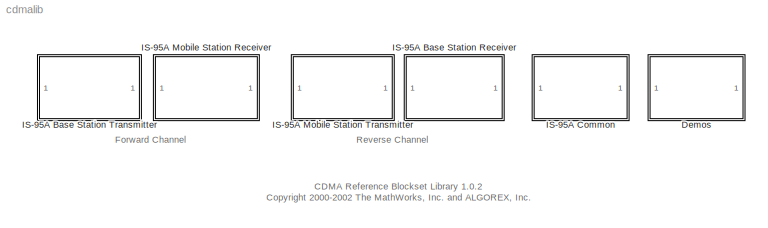
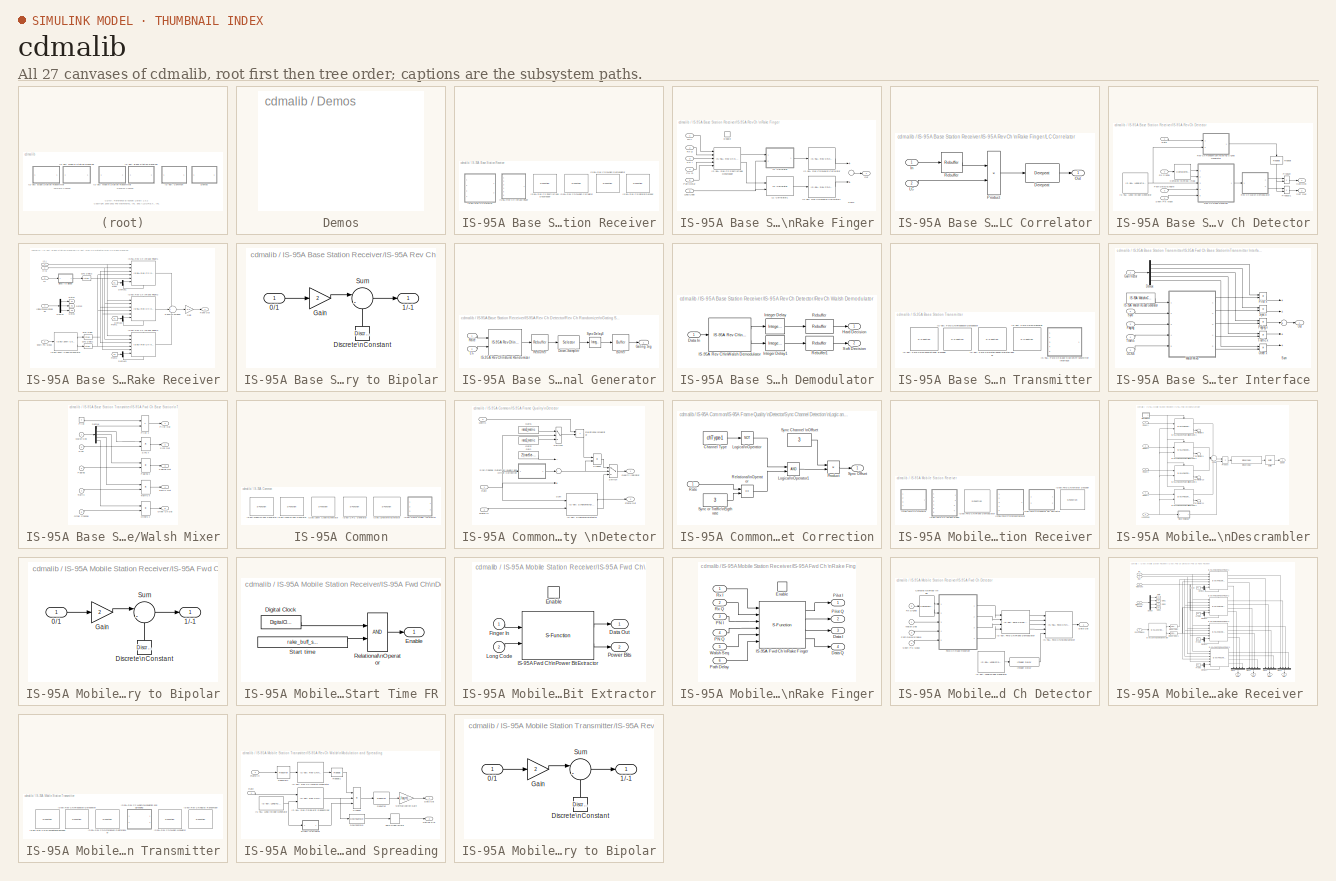
[diagram: thumbnail index - all 27 canvases of the model, root first then tree order]
MODEL cdmalib
KIND library
BLOCK [SubSystem] Demos
  MaskDisplay = disp('Demos')
  MaskIconFrame = on
  MaskIconOpaque = on
  MaskIconRotate = none
  MaskIconUnits = autoscale
  MaskType = DSP Demos
  OpenFcn = demo blocksets CDMA
  Ports = []
  TreatAsAtomicUnit = off
BLOCK [SubSystem] IS-95A Base Station Receiver
  MaskDisplay = disp('IS-95A \\nBase Station\\nReceiver')
  MaskIconFrame = on
  MaskIconOpaque = on
  MaskIconRotate = none
  MaskIconUnits = autoscale
  Ports = []
  TreatAsAtomicUnit = off
BLOCK [SubSystem] IS-95A Base Station Receiver/IS-95A Rev Ch Detector
  MaskCallbackString = ||||
  MaskDescription = Perform noncoherent detection of the reverse Access or Traffic channel frame.
  MaskEnableString = on,on,on,on,on
  MaskHelp = web(cdmaweb);
  MaskIconFrame = on
  MaskIconOpaque = on
  MaskIconRotate = none
  MaskIconUnits = autoscale
  MaskInitialization = is95noncohdetector;
  MaskPromptString = Channel type:|Walsh order:|Long code mask:|Oversampling rate:|Sample time:
  MaskSelfModifiable = on
  MaskStyleString = popup(Access|Traffic),edit,edit,edit,edit
  MaskToolTipString = on,on,on,on,on
  MaskTunableValueString = off,off,off,off,off
  MaskType = IS-95A Rev Ch Detector
  MaskValueString = Traffic|6|2^41|8|1/(50*384)
  MaskVarAliasString = ,,,,
  MaskVariables = chType=@1;wlshOrd=@2;lngcd_mask=@3;overSamplRate=@4;sampTime=@5;
  MaskVisibilityString = on,on,on,on,on
  Ports = [4, 2]
  TreatAsAtomicUnit = off
BLOCK [Reference] IS-95A Base Station Receiver/IS-95A Rev Ch Detector/ IS-95A Long \nCode Generator  REF=cdmalib/IS-95A Common/IS-95A Long\nCode Generator  (lib defined in mdl_250e8a714707)
  Ports = [0, 1]
  SourceBlock = cdmalib/IS-95A Common/IS-95A Long\nCode Generator
  SourceType = IS-95A Long Code Generator
  num_symb = N*(2^wlshOrd)*4
  tx_lc_dec_ratio = 1
  tx_lc_init_mask = lngcd_mask
  tx_lc_init_state = []
  tx_sample_time = N*4*sampTime
BLOCK [ComplexToRealImag] IS-95A Base Station Receiver/IS-95A Rev Ch Detector/Complex to\nReal-Imag
  Output = Real and imag
  Ports = [1, 2]
BLOCK [Outport] IS-95A Base Station Receiver/IS-95A Rev Ch Detector/Hard Dec
  InitialOutput = 0
BLOCK [Inport] IS-95A Base Station Receiver/IS-95A Rev Ch Detector/Path Delay//Enable
  Port = 3
BLOCK [Product] IS-95A Base Station Receiver/IS-95A Rev Ch Detector/Product
  Ports = [2, 1]
BLOCK [Product] IS-95A Base Station Receiver/IS-95A Rev Ch Detector/Product1
  Ports = [2, 1]
BLOCK [Inport] IS-95A Base Station Receiver/IS-95A Rev Ch Detector/Rate
BLOCK [Reference] IS-95A Base Station Receiver/IS-95A Rev Ch Detector/Repeat  REF=dspbdsp2/Repeat
  N = 36
  Ports = [1, 1]
  SourceBlock = dspbdsp2/Repeat
  SourceType = Repeat
  frame = on
  ic = 0
  mode = Maintain input frame rate
  nchans = 1
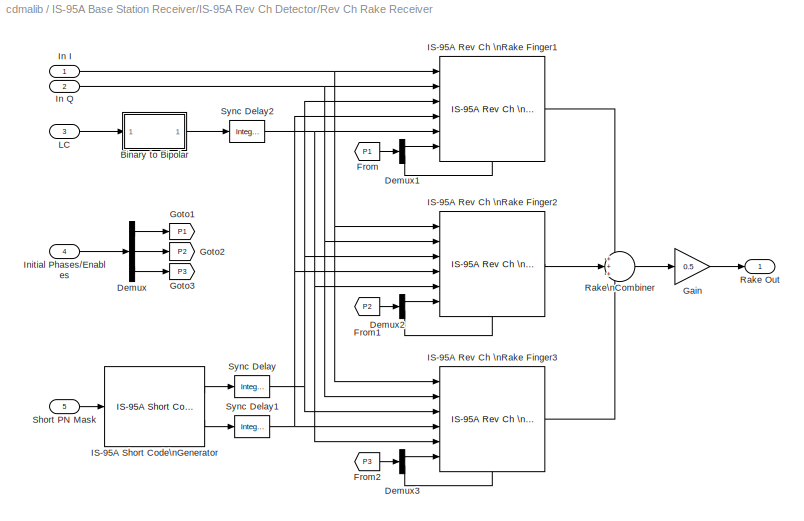
BLOCK [SubSystem] IS-95A Base Station Receiver/IS-95A Rev Ch Detector/Rev Ch Rake Receiver
  Ports = [5, 1]
  TreatAsAtomicUnit = off
BLOCK [SubSystem] IS-95A Base Station Receiver/IS-95A Rev Ch Detector/Rev Ch Rake Receiver/Binary to Bipolar
  MaskDescription = Convert binary (0/1) inputs to bipolar (1/-1) outputs.
  MaskIconFrame = on
  MaskIconOpaque = on
  MaskIconRotate = none
  MaskIconUnits = autoscale
  MaskType = Binary to Bipolar Transformation
  Ports = [1, 1]
  TreatAsAtomicUnit = off
BLOCK [Inport] IS-95A Base Station Receiver/IS-95A Rev Ch Detector/Rev Ch Rake Receiver/Binary to Bipolar/0//1
BLOCK [Outport] IS-95A Base Station Receiver/IS-95A Rev Ch Detector/Rev Ch Rake Receiver/Binary to Bipolar/1//-1
  InitialOutput = 0
BLOCK [Reference] IS-95A Base Station Receiver/IS-95A Rev Ch Detector/Rev Ch Rake Receiver/Binary to Bipolar/Discrete\nConstant  REF=dspsrcs2/Discrete\nConstant
  Ports = [0, 1]
  SourceBlock = dspsrcs2/Discrete\nConstant
  SourceType = Discrete Constant
  Ts = 1/50
  Value = 1
BLOCK [Gain] IS-95A Base Station Receiver/IS-95A Rev Ch Detector/Rev Ch Rake Receiver/Binary to Bipolar/Gain
  Gain = 2
BLOCK [Sum] IS-95A Base Station Receiver/IS-95A Rev Ch Detector/Rev Ch Rake Receiver/Binary to Bipolar/Sum
  IconShape = round
  Inputs = |-+
  Ports = [2, 1]
BLOCK [Demux] IS-95A Base Station Receiver/IS-95A Rev Ch Detector/Rev Ch Rake Receiver/Demux
  Outputs = 3
  Ports = [1, 3]
BLOCK [Demux] IS-95A Base Station Receiver/IS-95A Rev Ch Detector/Rev Ch Rake Receiver/Demux1
  Outputs = 2
  Ports = [1, 2]
BLOCK [Demux] IS-95A Base Station Receiver/IS-95A Rev Ch Detector/Rev Ch Rake Receiver/Demux2
  Outputs = 2
  Ports = [1, 2]
BLOCK [Demux] IS-95A Base Station Receiver/IS-95A Rev Ch Detector/Rev Ch Rake Receiver/Demux3
  Outputs = 2
  Ports = [1, 2]
BLOCK [From] IS-95A Base Station Receiver/IS-95A Rev Ch Detector/Rev Ch Rake Receiver/From
  CloseFcn = tagdialog Close
  GotoTag = P1
BLOCK [From] IS-95A Base Station Receiver/IS-95A Rev Ch Detector/Rev Ch Rake Receiver/From1
  CloseFcn = tagdialog Close
  GotoTag = P2
BLOCK [From] IS-95A Base Station Receiver/IS-95A Rev Ch Detector/Rev Ch Rake Receiver/From2
  CloseFcn = tagdialog Close
  GotoTag = P3
BLOCK [Gain] IS-95A Base Station Receiver/IS-95A Rev Ch Detector/Rev Ch Rake Receiver/Gain
  Gain = 0.5
BLOCK [Goto] IS-95A Base Station Receiver/IS-95A Rev Ch Detector/Rev Ch Rake Receiver/Goto1
  GotoTag = P1
  TagVisibility = local
BLOCK [Goto] IS-95A Base Station Receiver/IS-95A Rev Ch Detector/Rev Ch Rake Receiver/Goto2
  GotoTag = P2
  TagVisibility = local
BLOCK [Goto] IS-95A Base Station Receiver/IS-95A Rev Ch Detector/Rev Ch Rake Receiver/Goto3
  GotoTag = P3
  TagVisibility = local
BLOCK [Reference] IS-95A Base Station Receiver/IS-95A Rev Ch Detector/Rev Ch Rake Receiver/IS-95A Rev Ch \nRake Finger1  REF=cdmalib/IS-95A Base Station Receiver/IS-95A Rev Ch \nRake Finger  (lib defined in mdl_250e8a714707)
  Ports = [6, 1, 1]
  SourceBlock = cdmalib/IS-95A Base Station Receiver/IS-95A Rev Ch \nRake Finger
  SourceType = IS-95A Rev Ch Rake Finger
  buffSize = M*4*N
  outSize = N
  ovrSmp = overSamplRate
  wlshOrd = wlshOrd
BLOCK [Reference] IS-95A Base Station Receiver/IS-95A Rev Ch Detector/Rev Ch Rake Receiver/IS-95A Rev Ch \nRake Finger2  REF=cdmalib/IS-95A Base Station Receiver/IS-95A Rev Ch \nRake Finger  (lib defined in mdl_250e8a714707)
  Ports = [6, 1, 1]
  SourceBlock = cdmalib/IS-95A Base Station Receiver/IS-95A Rev Ch \nRake Finger
  SourceType = IS-95A Rev Ch Rake Finger
  buffSize = M*4*N
  outSize = N
  ovrSmp = overSamplRate
  wlshOrd = wlshOrd
BLOCK [Reference] IS-95A Base Station Receiver/IS-95A Rev Ch Detector/Rev Ch Rake Receiver/IS-95A Rev Ch \nRake Finger3  REF=cdmalib/IS-95A Base Station Receiver/IS-95A Rev Ch \nRake Finger  (lib defined in mdl_250e8a714707)
  Ports = [6, 1, 1]
  SourceBlock = cdmalib/IS-95A Base Station Receiver/IS-95A Rev Ch \nRake Finger
  SourceType = IS-95A Rev Ch Rake Finger
  buffSize = M*4*N
  outSize = N
  ovrSmp = overSamplRate
  wlshOrd = wlshOrd
BLOCK [Reference] IS-95A Base Station Receiver/IS-95A Rev Ch Detector/Rev Ch Rake Receiver/IS-95A Short Code\nGenerator  REF=cdmalib/IS-95A Common/IS-95A Short Code\nGenerator  (lib defined in mdl_250e8a714707)
  Ports = [1, 2]
  SourceBlock = cdmalib/IS-95A Common/IS-95A Short Code\nGenerator
  SourceType = IS-95A Short Code Generator
  numOut = 2^wlshOrd
  sampTime = sampTime
BLOCK [Inport] IS-95A Base Station Receiver/IS-95A Rev Ch Detector/Rev Ch Rake Receiver/In I
BLOCK [Inport] IS-95A Base Station Receiver/IS-95A Rev Ch Detector/Rev Ch Rake Receiver/In Q
  Port = 2
BLOCK [Inport] IS-95A Base Station Receiver/IS-95A Rev Ch Detector/Rev Ch Rake Receiver/Initial Phases//Enables
  Port = 4
BLOCK [Inport] IS-95A Base Station Receiver/IS-95A Rev Ch Detector/Rev Ch Rake Receiver/LC
  Port = 3
BLOCK [Outport] IS-95A Base Station Receiver/IS-95A Rev Ch Detector/Rev Ch Rake Receiver/Rake Out
  InitialOutput = 0
BLOCK [Sum] IS-95A Base Station Receiver/IS-95A Rev Ch Detector/Rev Ch Rake Receiver/Rake\nCombiner
  IconShape = round
  Inputs = +++
  Ports = [3, 1]
BLOCK [Inport] IS-95A Base Station Receiver/IS-95A Rev Ch Detector/Rev Ch Rake Receiver/Short PN Mask
  Port = 5
BLOCK [Reference] IS-95A Base Station Receiver/IS-95A Rev Ch Detector/Rev Ch Rake Receiver/Sync Delay  REF=dspbdsp2/Integer Delay
  Ports = [1, 1]
  SourceBlock = dspbdsp2/Integer Delay
  SourceType = Integer Delay
  delay = M*4*N
  df = on
  frame = off
  ic = 0
  numChans = 1
BLOCK [Reference] IS-95A Base Station Receiver/IS-95A Rev Ch Detector/Rev Ch Rake Receiver/Sync Delay1  REF=dspbdsp2/Integer Delay
  Ports = [1, 1]
  SourceBlock = dspbdsp2/Integer Delay
  SourceType = Integer Delay
  delay = M*4*N
  df = on
  frame = off
  ic = 0
  numChans = 1
BLOCK [Reference] IS-95A Base Station Receiver/IS-95A Rev Ch Detector/Rev Ch Rake Receiver/Sync Delay2  REF=dspbdsp2/Integer Delay
  Ports = [1, 1]
  SourceBlock = dspbdsp2/Integer Delay
  SourceType = Integer Delay
  delay = 1 + M
  df = on
  frame = off
  ic = 0
  numChans = 1
BLOCK [SubSystem] IS-95A Base Station Receiver/IS-95A Rev Ch Detector/Rev Ch Randomizer\nGating Signal Generator
  Ports = [2, 1]
  TreatAsAtomicUnit = off
BLOCK [Reference] IS-95A Base Station Receiver/IS-95A Rev Ch Detector/Rev Ch Randomizer\nGating Signal Generator/Buffer  REF=dspbuff2/Buffer
  N = 16
  Ports = [1, 1]
  SourceBlock = dspbuff2/Buffer
  SourceType = Buffer
  V = 0
  ic = 0
BLOCK [Selector] IS-95A Base Station Receiver/IS-95A Rev Ch Detector/Rev Ch Randomizer\nGating Signal Generator/Down-Sampler
  InputPortWidth = 1536
  Ports = [1, 1]
BLOCK [Outport] IS-95A Base Station Receiver/IS-95A Rev Ch Detector/Rev Ch Randomizer\nGating Signal Generator/Gating Sig
  InitialOutput = 0
BLOCK [Reference] IS-95A Base Station Receiver/IS-95A Rev Ch Detector/Rev Ch Randomizer\nGating Signal Generator/IS-95A Rev Ch\nBurst Randomizer  REF=cdmalib/IS-95A Mobile Station Transmitter/IS-95A Rev Ch\nBurst Randomizer  (lib defined in mdl_250e8a714707)
  Ports = [2, 1]
  SourceBlock = cdmalib/IS-95A Mobile Station Transmitter/IS-95A Rev Ch\nBurst Randomizer
  SourceType = IS-95A Rev Ch Burst Randomizer
  chType = Traffic
  initLCSt = []
BLOCK [Inport] IS-95A Base Station Receiver/IS-95A Rev Ch Detector/Rev Ch Randomizer\nGating Signal Generator/LC
  Port = 2
BLOCK [Inport] IS-95A Base Station Receiver/IS-95A Rev Ch Detector/Rev Ch Randomizer\nGating Signal Generator/Rate
BLOCK [Reference] IS-95A Base Station Receiver/IS-95A Rev Ch Detector/Rev Ch Randomizer\nGating Signal Generator/Rebuffer  REF=dspbuff2/Rebuffer
  N = 1536
  Ports = [1, 1]
  SourceBlock = dspbuff2/Rebuffer
  SourceType = Rebuffer
  Specify_Out_Size = on
  V = 0
  frame = on
  ic = 0
  num_chans = 1
BLOCK [Reference] IS-95A Base Station Receiver/IS-95A Rev Ch Detector/Rev Ch Randomizer\nGating Signal Generator/Sync Delay3  REF=dspbdsp2/Integer Delay
  Ports = [1, 1]
  SourceBlock = dspbdsp2/Integer Delay
  SourceType = Integer Delay
  delay = 15
  df = on
  frame = off
  ic = 0
  numChans = 1
BLOCK [SubSystem] IS-95A Base Station Receiver/IS-95A Rev Ch Detector/Rev Ch Walsh Demodulator
  MaskCallbackString = ||
  MaskDescription = Performs Walsh demodulation of the signal after combining the output of the rake fingers.
  MaskEnableString = on,on,on
  MaskHelp = web(cdmaweb);
  MaskIconFrame = on
  MaskIconOpaque = on
  MaskIconRotate = none
  MaskIconUnits = autoscale
  MaskPromptString = Input Size (in No of Walsh Functions)|Input Delay (in No of Walsh Functions)|Walsh Order
  MaskStyleString = edit,edit,edit
  MaskToolTipString = on,on,on
  MaskTunableValueString = on,on,on
  MaskType = IS95A NonCoh Walsh Demod
  MaskValueString = N|(M+1)*N|wlshOrd
  MaskVarAliasString = ,,
  MaskVariables = inSize=@1;off=@2;wlshOrder=@3;
  MaskVisibilityString = on,on,on
  Ports = [1, 2]
  TreatAsAtomicUnit = off
BLOCK [Inport] IS-95A Base Station Receiver/IS-95A Rev Ch Detector/Rev Ch Walsh Demodulator/Data In
BLOCK [Outport] IS-95A Base Station Receiver/IS-95A Rev Ch Detector/Rev Ch Walsh Demodulator/Hard Decision
  InitialOutput = 0
BLOCK [Reference] IS-95A Base Station Receiver/IS-95A Rev Ch Detector/Rev Ch Walsh Demodulator/IS-95A Rev Ch\nWalsh Demodulator  REF=cdmalib/IS-95A Base Station Receiver/IS-95A Rev Ch\nWalsh Demodulator  (lib defined in mdl_250e8a714707)
  Ports = [1, 2]
  SourceBlock = cdmalib/IS-95A Base Station Receiver/IS-95A Rev Ch\nWalsh Demodulator
  SourceType = IS-95A Rev Ch Walsh Demodulator
  numSymb = 1
  wlshOrd = wlshOrder
BLOCK [Reference] IS-95A Base Station Receiver/IS-95A Rev Ch Detector/Rev Ch Walsh Demodulator/Integer Delay  REF=dspbdsp2/Integer Delay
  Ports = [1, 1]
  SourceBlock = dspbdsp2/Integer Delay
  SourceType = Integer Delay
  delay = (576 - off * wlshOrder) / (inSize * wlshOrder)
  df = off
  frame = off
  ic = 0
  numChans = 1
BLOCK [Reference] IS-95A Base Station Receiver/IS-95A Rev Ch Detector/Rev Ch Walsh Demodulator/Integer Delay1  REF=dspbdsp2/Integer Delay
  Ports = [1, 1]
  SourceBlock = dspbdsp2/Integer Delay
  SourceType = Integer Delay
  delay = (576 - off * wlshOrder) / (inSize * wlshOrder)
  df = off
  frame = off
  ic = 0
  numChans = 1
BLOCK [Reference] IS-95A Base Station Receiver/IS-95A Rev Ch Detector/Rev Ch Walsh Demodulator/Rebuffer  REF=dspbuff2/Rebuffer
  N = 576
  Ports = [1, 1]
  SourceBlock = dspbuff2/Rebuffer
  SourceType = Rebuffer
  Specify_Out_Size = on
  V = 0
  frame = on
  ic = 0
  num_chans = 1
BLOCK [Reference] IS-95A Base Station Receiver/IS-95A Rev Ch Detector/Rev Ch Walsh Demodulator/Rebuffer1  REF=dspbuff2/Rebuffer
  N = 576
  Ports = [1, 1]
  SourceBlock = dspbuff2/Rebuffer
  SourceType = Rebuffer
  Specify_Out_Size = on
  V = 0
  frame = on
  ic = 0
  num_chans = 1
BLOCK [Outport] IS-95A Base Station Receiver/IS-95A Rev Ch Detector/Rev Ch Walsh Demodulator/Soft Decision
  InitialOutput = 0
  Port = 2
BLOCK [Inport] IS-95A Base Station Receiver/IS-95A Rev Ch Detector/Rx Signal
  Port = 2
BLOCK [Inport] IS-95A Base Station Receiver/IS-95A Rev Ch Detector/Short PN Mask
  Port = 4
BLOCK [Outport] IS-95A Base Station Receiver/IS-95A Rev Ch Detector/Soft Dec
  InitialOutput = 0
  Port = 2
BLOCK [S-Function] IS-95A Base Station Receiver/IS-95A Rev Ch Short\nCode Despreader
  FunctionName = sis95rcdespread
  MaskCallbackString = |||
  MaskDescription = Perform despreading of the input I and Q frames with the I and Q short PN codes.
  MaskDisplay = port_label('input', 1, 'Rx I');\nport_label('input', 2, 'Rx Q');\nport_label('input', 3, 'PN I');\nport_label('input', 4, 'PN Q');\nport_label('input', 5, 'Path Delay');\nport_label('output', 1, 'Data I');\nport_label('output', 2, 'Data Q');
  MaskEnableString = on,on,on,on
  MaskHelp = web(cdmaweb);
  MaskIconFrame = on
  MaskIconOpaque = on
  MaskIconRotate = none
  MaskIconUnits = autoscale
  MaskPromptString = Input frame size (in number of symbols):|Walsh size:|Tracking buffer size (in number of symbols):|Oversampling rate:
  MaskStyleString = edit,edit,edit,edit
  MaskToolTipString = on,on,on,on
  MaskTunableValueString = off,off,off,off
  MaskType = IS-95A Rev Ch Short Code Despreader
  MaskValueString = 1|64|3|8
  MaskVarAliasString = ,,,
  MaskVariables = numSymb=@1;integLen=@2;buffSize=@3;ovrSmp=@4;
  MaskVisibilityString = on,on,on,on
  Parameters = numSymb buffSize integLen ovrSmp
  Ports = [5, 2]
BLOCK [SubSystem] IS-95A Base Station Receiver/IS-95A Rev Ch \nRake Finger
  MaskCallbackString = |||
  MaskDescription = Despread the received signal with the short PN and long codes and then correlate the despread signal with all of the Walsh code sequences.
  MaskEnableString = on,on,on,on
  MaskHelp = web(cdmaweb);
  MaskIconFrame = on
  MaskIconOpaque = on
  MaskIconRotate = none
  MaskIconUnits = autoscale
  MaskPromptString = Walsh order:|Output size (in number of walsh functions):|Tracking buffer size (in number of symbols):|Oversampling rate:
  MaskStyleString = edit,edit,edit,edit
  MaskToolTipString = on,on,on,on
  MaskTunableValueString = off,off,off,off
  MaskType = IS-95A Rev Ch Rake Finger
  MaskValueString = 6|1|3|8
  MaskVarAliasString = ,,,
  MaskVariables = wlshOrd=@1;outSize=@2;buffSize=@3;ovrSmp=@4;
  MaskVisibilityString = on,on,on,on
  Ports = [6, 1, 1]
  TreatAsAtomicUnit = on
BLOCK [EnablePort] IS-95A Base Station Receiver/IS-95A Rev Ch \nRake Finger/Enable
  Ports = []
BLOCK [Reference] IS-95A Base Station Receiver/IS-95A Rev Ch \nRake Finger/IS-95A Rev Ch Short\nCode Despreader  REF=cdmalib/IS-95A Base Station Receiver/IS-95A Rev Ch Short\nCode Despreader  (lib defined in mdl_250e8a714707)
  Ports = [5, 2]
  SourceBlock = cdmalib/IS-95A Base Station Receiver/IS-95A Rev Ch Short\nCode Despreader
  SourceType = IS-95A Rev Ch Short Code Despreader
  buffSize = buffSize
  integLen = 2^wlshOrd
  numSymb = outSize
  ovrSmp = ovrSmp
BLOCK [Reference] IS-95A Base Station Receiver/IS-95A Rev Ch \nRake Finger/IS-95A Rev Ch\nWalsh Correlator  REF=cdmalib/IS-95A Base Station Receiver/IS-95A Rev Ch\nWalsh Correlator  (lib defined in mdl_250e8a714707)
  Ports = [1, 1]
  SourceBlock = cdmalib/IS-95A Base Station Receiver/IS-95A Rev Ch\nWalsh Correlator
  SourceType = IS-95A Rev Ch Walsh Correlator
  numSymb = outSize
  wlshOrd = wlshOrd
BLOCK [Reference] IS-95A Base Station Receiver/IS-95A Rev Ch \nRake Finger/IS-95A Rev Ch\nWalsh Correlator1  REF=cdmalib/IS-95A Base Station Receiver/IS-95A Rev Ch\nWalsh Correlator  (lib defined in mdl_250e8a714707)
  Ports = [1, 1]
  SourceBlock = cdmalib/IS-95A Base Station Receiver/IS-95A Rev Ch\nWalsh Correlator
  SourceType = IS-95A Rev Ch Walsh Correlator
  numSymb = outSize
  wlshOrd = wlshOrd
BLOCK [SubSystem] IS-95A Base Station Receiver/IS-95A Rev Ch \nRake Finger/LC Correlator
  Ports = [2, 1]
  TreatAsAtomicUnit = off
BLOCK [Reference] IS-95A Base Station Receiver/IS-95A Rev Ch \nRake Finger/LC Correlator/Derepeat  REF=commutil/Derepeat
  N = 4
  Ports = [1, 1]
  SourceBlock = commutil/Derepeat
  SourceType = Derepeat
  frame = on
  ic = 0
  mode = Maintain input frame rate
  nchans = 1
BLOCK [Inport] IS-95A Base Station Receiver/IS-95A Rev Ch \nRake Finger/LC Correlator/In
BLOCK [Inport] IS-95A Base Station Receiver/IS-95A Rev Ch \nRake Finger/LC Correlator/LC
  Port = 2
BLOCK [Outport] IS-95A Base Station Receiver/IS-95A Rev Ch \nRake Finger/LC Correlator/Out
  InitialOutput = 0
BLOCK [Product] IS-95A Base Station Receiver/IS-95A Rev Ch \nRake Finger/LC Correlator/Product
  Ports = [2, 1]
BLOCK [Reference] IS-95A Base Station Receiver/IS-95A Rev Ch \nRake Finger/LC Correlator/Rebuffer  REF=dspbuff2/Rebuffer
  N = 4*outSize*(2^wlshOrd)
  Ports = [1, 1]
  SourceBlock = dspbuff2/Rebuffer
  SourceType = Rebuffer
  Specify_Out_Size = on
  V = 0
  frame = on
  ic = 0
  num_chans = 1
BLOCK [Reference] IS-95A Base Station Receiver/IS-95A Rev Ch \nRake Finger/LC Correlator1  REF=cdmalib/IS-95A Base Station Receiver/IS-95A Rev Ch \nRake Finger/LC Correlator  (lib defined in mdl_250e8a714707)
  Ports = [2, 1]
  RTWFcnNameOpts = Auto
  RTWFileNameOpts = Auto
  RTWSystemCode = Auto
  ShowPortLabels = on
  SourceBlock = cdmalib/IS-95A Base Station Receiver/IS-95A Rev Ch \nRake Finger/LC Correlator
  SourceType = SubSystem
  TreatAsAtomicUnit = off
BLOCK [Inport] IS-95A Base Station Receiver/IS-95A Rev Ch \nRake Finger/Long Code
  Port = 5
BLOCK [Outport] IS-95A Base Station Receiver/IS-95A Rev Ch \nRake Finger/Out
  InitialOutput = 0
BLOCK [Inport] IS-95A Base Station Receiver/IS-95A Rev Ch \nRake Finger/PN I
  Port = 3
BLOCK [Inport] IS-95A Base Station Receiver/IS-95A Rev Ch \nRake Finger/PN Q
  Port = 4
BLOCK [Inport] IS-95A Base Station Receiver/IS-95A Rev Ch \nRake Finger/Path Delay
  Port = 6
BLOCK [Inport] IS-95A Base Station Receiver/IS-95A Rev Ch \nRake Finger/Rx I
BLOCK [Inport] IS-95A Base Station Receiver/IS-95A Rev Ch \nRake Finger/Rx Q
  Port = 2
BLOCK [Sum] IS-95A Base Station Receiver/IS-95A Rev Ch \nRake Finger/Sum1
  Ports = [2, 1]
BLOCK [S-Function] IS-95A Base Station Receiver/IS-95A Rev Ch\nViterbi Decoder
  FunctionName = sis95rcdec
  MaskCallbackString = |||
  MaskDescription = Perform optimum decoding for a convolutionally encoded reverse Access or Traffic channel frame.
  MaskDisplay = port_label('input', 1, 'Rate');\nport_label('input', 2, 'Frame In');\nport_label('output', 2, 'Metric');\nport_label('output', 1, 'Frame Out');
  MaskEnableString = on,on,on,on
  MaskHelp = web(cdmaweb);
  MaskIconFrame = on
  MaskIconOpaque = on
  MaskIconRotate = none
  MaskIconUnits = autoscale
  MaskPromptString = Rate set:|Channel type:|Ratio of trace-back length to frame length:|Ratio of decoding length to frame length:
  MaskStyleString = popup(Rate Set I|Rate Set II),popup(Access|Traffic),edit,edit
  MaskToolTipString = on,on,on,on
  MaskTunableValueString = off,off,off,off
  MaskType = IS-95A Rev Ch Viterbi Decoder
  MaskValueString = Rate Set I|Traffic|1|1
  MaskVarAliasString = ,,,
  MaskVariables = rateSet=@1;chType=@2;traceBackLenRatio=@3;decodeLenRatio=@4;
  MaskVisibilityString = on,on,on,on
  Parameters = rateSet chType traceBackLenRatio decodeLenRatio
  Ports = [2, 2]
BLOCK [S-Function] IS-95A Base Station Receiver/IS-95A Rev Ch\nWalsh Correlator
  FunctionName = sis95rcwalshcor
  MaskCallbackString = |
  MaskDescription = Correlate the input sequence with a bank of Walsh sequences for the reverse Access or Traffic channel frame. The length of the input vector is \n(Number of input symbols) * (2^Walsh order).
  MaskDisplay = disp('IS-95A Rev Ch \\nWalsh Correlator');
  MaskEnableString = on,on
  MaskHelp = web(cdmaweb);
  MaskIconFrame = on
  MaskIconOpaque = on
  MaskIconRotate = none
  MaskIconUnits = autoscale
  MaskPromptString = Walsh order:|Number of input symbols:
  MaskStyleString = edit,edit
  MaskToolTipString = on,on
  MaskTunableValueString = off,off
  MaskType = IS-95A Rev Ch Walsh Correlator
  MaskValueString = 6|1
  MaskVarAliasString = ,
  MaskVariables = wlshOrd=@1;numSymb=@2;
  MaskVisibilityString = on,on
  Parameters = wlshOrd numSymb
  Ports = [1, 1]
BLOCK [S-Function] IS-95A Base Station Receiver/IS-95A Rev Ch\nWalsh Demodulator
  FunctionName = sis95rcwalshdemod
  MaskCallbackString = |
  MaskDescription = Perform Walsh demodulation of the received signal. The length of the input vector is (Number of input symbols) * (2^Walsh order).
  MaskDisplay = port_label('output', 1, 'Hard Dec');\nport_label('output', 2, 'Soft Dec');
  MaskEnableString = on,on
  MaskHelp = web(cdmaweb);
  MaskIconFrame = on
  MaskIconOpaque = on
  MaskIconRotate = none
  MaskIconUnits = autoscale
  MaskPromptString = Walsh order:|Number of input symbols:
  MaskStyleString = edit,edit
  MaskToolTipString = on,on
  MaskTunableValueString = off,off
  MaskType = IS-95A Rev Ch Walsh Demodulator
  MaskValueString = 6|1
  MaskVarAliasString = ,
  MaskVariables = wlshOrd=@1;numSymb=@2;
  MaskVisibilityString = on,on
  Parameters = wlshOrd numSymb
  Ports = [1, 2]
BLOCK [SubSystem] IS-95A Base Station Transmitter
  MaskDisplay = disp('IS-95A \\nBase Station\\nTransmitter')\n
  MaskIconFrame = on
  MaskIconOpaque = on
  MaskIconRotate = none
  MaskIconUnits = autoscale
  Ports = []
  ShowPortLabels = off
  TreatAsAtomicUnit = off
BLOCK [SubSystem] IS-95A Base Station Transmitter/IS-95A Fwd Ch Base Station\nTransmitter Interface
  MaskCallbackString = |||
  MaskDescription = Combine Pilot, Sync, Paging, Traffic and Orthogonal Channel Noise Simulator (OCNS) symbols using different Walsh Code sequences.
  MaskEnableString = on,on,on,on
  MaskHelp = web(cdmaweb);
  MaskIconFrame = on
  MaskIconOpaque = on
  MaskIconRotate = none
  MaskIconUnits = autoscale
  MaskInitialization = \n
  MaskPromptString = Paging channel rate:|Walsh order:|Pilot, sync, paging, traffic and OCNS Walsh indices:|Sample time:
  MaskSelfModifiable = on
  MaskStyleString = popup(Full|Half),edit,edit,edit
  MaskToolTipString = on,on,on,on
  MaskTunableValueString = off,off,off,off
  MaskType = IS-95A Fwd Ch Base Station Transmitter Interface
  MaskValueString = Full|6|[0 32 2 38 23]|1/(50*384)
  MaskVarAliasString = ,,,
  MaskVariables = paging_rate=@1;wlshOrd=@2;wlsh_indices=@3;sampTime=@4;
  MaskVisibilityString = on,on,on,on
  Ports = [5, 1]
  TreatAsAtomicUnit = off
BLOCK [Demux] IS-95A Base Station Transmitter/IS-95A Fwd Ch Base Station\nTransmitter Interface/Demux
  Outputs = 5
  Ports = [1, 5]
BLOCK [Inport] IS-95A Base Station Transmitter/IS-95A Fwd Ch Base Station\nTransmitter Interface/Gain Vector
BLOCK [Reference] IS-95A Base Station Transmitter/IS-95A Fwd Ch Base Station\nTransmitter Interface/IS-95A Walsh \nCode Generator  REF=cdmalib/IS-95A Common/IS-95A Walsh\nCode Generator  (lib defined in mdl_250e8a714707)
  Ports = [0, 1]
  SourceBlock = cdmalib/IS-95A Common/IS-95A Walsh\nCode Generator
  SourceType = IS-95A Walsh Code Generator
  st = sampTime
  wlshIndices = wlsh_indices
  wlshOrd = wlshOrd
BLOCK [Inport] IS-95A Base Station Transmitter/IS-95A Fwd Ch Base Station\nTransmitter Interface/OCNS
  Port = 5
BLOCK [Product] IS-95A Base Station Transmitter/IS-95A Fwd Ch Base Station\nTransmitter Interface/Other x
  Inputs = **
  Ports = [2, 1]
BLOCK [Outport] IS-95A Base Station Transmitter/IS-95A Fwd Ch Base Station\nTransmitter Interface/Out
  InitialOutput = 0
BLOCK [Inport] IS-95A Base Station Transmitter/IS-95A Fwd Ch Base Station\nTransmitter Interface/Paging
  Port = 3
BLOCK [Product] IS-95A Base Station Transmitter/IS-95A Fwd Ch Base Station\nTransmitter Interface/Paging x
  Inputs = **
  Ports = [2, 1]
BLOCK [Product] IS-95A Base Station Transmitter/IS-95A Fwd Ch Base Station\nTransmitter Interface/Pilot x
  Inputs = **
  Ports = [2, 1]
BLOCK [Sum] IS-95A Base Station Transmitter/IS-95A Fwd Ch Base Station\nTransmitter Interface/Sum
  Inputs = +++++
  Ports = [5, 1]
BLOCK [Inport] IS-95A Base Station Transmitter/IS-95A Fwd Ch Base Station\nTransmitter Interface/Sync
  Port = 2
BLOCK [Product] IS-95A Base Station Transmitter/IS-95A Fwd Ch Base Station\nTransmitter Interface/Sync x
  Inputs = **
  Ports = [2, 1]
BLOCK [Inport] IS-95A Base Station Transmitter/IS-95A Fwd Ch Base Station\nTransmitter Interface/Traffic
  Port = 4
BLOCK [Product] IS-95A Base Station Transmitter/IS-95A Fwd Ch Base Station\nTransmitter Interface/Traffic x
  Inputs = **
  Ports = [2, 1]
BLOCK [SubSystem] IS-95A Base Station Transmitter/IS-95A Fwd Ch Base Station\nTransmitter Interface/Walsh Mixer
  Ports = [5, 5]
  TreatAsAtomicUnit = off
BLOCK [Demux] IS-95A Base Station Transmitter/IS-95A Fwd Ch Base Station\nTransmitter Interface/Walsh Mixer/Demux 
  Outputs = [64 64 64 64 -1]
  Ports = [1, 5]
BLOCK [Outport] IS-95A Base Station Transmitter/IS-95A Fwd Ch Base Station\nTransmitter Interface/Walsh Mixer/Other Ch Out
  InitialOutput = 0
  Port = 5
BLOCK [Inport] IS-95A Base Station Transmitter/IS-95A Fwd Ch Base Station\nTransmitter Interface/Walsh Mixer/Other Channel
  Port = 5
BLOCK [Product] IS-95A Base Station Transmitter/IS-95A Fwd Ch Base Station\nTransmitter Interface/Walsh Mixer/Others  x
  Inputs = **
  Ports = [2, 1]
BLOCK [Inport] IS-95A Base Station Transmitter/IS-95A Fwd Ch Base Station\nTransmitter Interface/Walsh Mixer/Paging
  Port = 3
BLOCK [Outport] IS-95A Base Station Transmitter/IS-95A Fwd Ch Base Station\nTransmitter Interface/Walsh Mixer/Paging Out
  InitialOutput = 0
  Port = 3
BLOCK [Product] IS-95A Base Station Transmitter/IS-95A Fwd Ch Base Station\nTransmitter Interface/Walsh Mixer/Paging x
  Inputs = **
  Ports = [2, 1]
BLOCK [Constant] IS-95A Base Station Transmitter/IS-95A Fwd Ch Base Station\nTransmitter Interface/Walsh Mixer/Pilot
BLOCK [Outport] IS-95A Base Station Transmitter/IS-95A Fwd Ch Base Station\nTransmitter Interface/Walsh Mixer/Pilot Out
  InitialOutput = 0
BLOCK [Product] IS-95A Base Station Transmitter/IS-95A Fwd Ch Base Station\nTransmitter Interface/Walsh Mixer/Pilot x
  Inputs = **
  Ports = [2, 1]
BLOCK [Inport] IS-95A Base Station Transmitter/IS-95A Fwd Ch Base Station\nTransmitter Interface/Walsh Mixer/Sync
  Port = 2
BLOCK [Outport] IS-95A Base Station Transmitter/IS-95A Fwd Ch Base Station\nTransmitter Interface/Walsh Mixer/Sync Out
  InitialOutput = 0
  Port = 2
BLOCK [Product] IS-95A Base Station Transmitter/IS-95A Fwd Ch Base Station\nTransmitter Interface/Walsh Mixer/Sync x
  Inputs = **
  Ports = [2, 1]
BLOCK [Inport] IS-95A Base Station Transmitter/IS-95A Fwd Ch Base Station\nTransmitter Interface/Walsh Mixer/Traffic
  Port = 4
  SampleTime = 1/50/384
BLOCK [Outport] IS-95A Base Station Transmitter/IS-95A Fwd Ch Base Station\nTransmitter Interface/Walsh Mixer/Traffic Out
  InitialOutput = 0
  Port = 4
BLOCK [Product] IS-95A Base Station Transmitter/IS-95A Fwd Ch Base Station\nTransmitter Interface/Walsh Mixer/Traffic x
  Inputs = **
  Ports = [2, 1]
BLOCK [Inport] IS-95A Base Station Transmitter/IS-95A Fwd Ch Base Station\nTransmitter Interface/Walsh Mixer/Walsh Seq
BLOCK [S-Function] IS-95A Base Station Transmitter/IS-95A Fwd Ch\nConvolutional Encoder
  FunctionName = sis95enc
  MaskCallbackString = ||
  MaskDescription = Convolutionally encode the bits of the forward Sync, Paging or Traffic channel frame.
  MaskDisplay = port_label('input', 1, 'Rate');\nport_label('input', 2, 'Frame In');\n\n
  MaskEnableString = on,on,on
  MaskHelp = web(cdmaweb);
  MaskIconFrame = on
  MaskIconOpaque = on
  MaskIconRotate = none
  MaskIconUnits = autoscale
  MaskPromptString = Rate set:|Channel type:|Initial encoder state:
  MaskStyleString = popup(Rate Set I|Rate Set II),popup(Sync|Paging|Traffic),edit
  MaskToolTipString = on,on,on
  MaskTunableValueString = off,off,off
  MaskType = IS-95A Fwd Ch Convolutional Encoder
  MaskValueString = Rate Set I|Traffic|[]
  MaskVarAliasString = ,,
  MaskVariables = rate_set=@1;ch_type=@2;enc_state=@3;
  MaskVisibilityString = on,on,on
  Parameters = ch_type rate_set enc_state
  Ports = [2, 1]
BLOCK [S-Function] IS-95A Base Station Transmitter/IS-95A Fwd Ch\nInterleaver//Deinterleaver
  FunctionName = sis95int
  MaskCallbackString = |
  MaskDescription = Interleave or deinterleave the symbols of the forward Sync, Paging or Traffic Channel frame.
  MaskDisplay = disp('IS-95A Fwd Ch \\nInterleaver/\\nDeinterleaver');
  MaskEnableString = on,on
  MaskHelp = web(cdmaweb);
  MaskIconFrame = on
  MaskIconOpaque = on
  MaskIconRotate = none
  MaskIconUnits = autoscale
  MaskInitialization = is95fwdchinterleaver;
  MaskPromptString = Channel type:|Function:
  MaskStyleString = popup(Sync|Paging|Traffic),popup(Interleaver|Deinterleaver)
  MaskToolTipString = on,on
  MaskTunableValueString = off,off
  MaskType = IS-95A Fwd Ch Interleaver/Deinterleaver
  MaskValueString = Traffic|Interleaver
  MaskVarAliasString = ,
  MaskVariables = ch_type=@1;int_select=@2;
  MaskVisibilityString = on,on
  Parameters = ch_type intlv_tbl int_option
  Ports = [1, 1]
BLOCK [S-Function] IS-95A Base Station Transmitter/IS-95A Fwd Ch\nRepeater//Derepeater
  FunctionName = sis95rep
  MaskCallbackString = ||
  MaskDescription = Repeat and puncture if necessary or derepeat the symbols of a convolutionally encoded frame for the forward Sync, Paging or Traffic channel.
  MaskDisplay = port_label('input', 1, 'Rate');\nport_label('input', 2, 'Frame In');\n\n
  MaskEnableString = on,on,on
  MaskHelp = web(cdmaweb);
  MaskIconFrame = on
  MaskIconOpaque = on
  MaskIconRotate = none
  MaskIconUnits = autoscale
  MaskInitialization = is95fwdchrepeater;
  MaskPromptString = Rate set:|Channel type:|Function:
  MaskStyleString = popup(Rate Set I|Rate Set II),popup(Sync|Paging|Traffic),popup(Repeater|Derepeater)
  MaskToolTipString = on,on,on
  MaskTunableValueString = off,off,off
  MaskType = IS-95A Fwd Ch Repeater/Derepeater
  MaskValueString = Rate Set I|Traffic|Derepeater
  MaskVarAliasString = ,,
  MaskVariables = rate_set=@1;ch_type=@2;rep_select=@3;
  MaskVisibilityString = on,on,on
  Parameters = ch_type rate_set rep_option
  Ports = [2, 1]
BLOCK [S-Function] IS-95A Base Station Transmitter/IS-95A Fwd Ch\nScrambler
  FunctionName = sis95scramble
  MaskCallbackString = |
  MaskDescription = Scramble the symbols of the forward Paging or Traffic channel frame by the decimated long code and insert power control bits into the Traffic channel frame.
  MaskDisplay = port_label('input', 1, 'Rate');\nport_label('input', 2, 'Data In');\nport_label('input', 3, 'Long Code');\nport_label('input', 4, 'Power Bits');\n\n
  MaskEnableString = on,on
  MaskHelp = web(cdmaweb);
  MaskIconFrame = on
  MaskIconOpaque = on
  MaskIconRotate = none
  MaskIconUnits = autoscale
  MaskPromptString = Rate set:|Channel type:
  MaskStyleString = popup(Rate Set I|Rate Set II),popup(Sync|Paging|Traffic)
  MaskToolTipString = on,on
  MaskTunableValueString = off,off
  MaskType = IS-95A Fwd Ch Scrambler
  MaskValueString = Rate Set I|Traffic
  MaskVarAliasString = ,
  MaskVariables = rate_set=@1;chType=@2;
  MaskVisibilityString = on,on
  Parameters = chType  rate_set
  Ports = [4, 1]
BLOCK [SubSystem] IS-95A Common
  MaskDisplay = disp('IS-95A \\nCommon')\n
  MaskIconFrame = on
  MaskIconOpaque = on
  MaskIconRotate = none
  MaskIconUnits = autoscale
  Ports = []
  ShowPortLabels = off
  TreatAsAtomicUnit = off
BLOCK [S-Function] IS-95A Common/IS-95A CRC Generator
  FunctionName = sis95crcgen
  MaskCallbackString = |
  MaskDescription = Generate Cyclic Redundancy Check (CRC) bits and add them along with the tail bits to the forward or reverse Traffic channel frame.
  MaskDisplay = port_label('input', 1, 'Rate');\nport_label('input', 2, 'Frame In');\n
  MaskEnableString = on,on
  MaskHelp = web(cdmaweb);
  MaskIconFrame = on
  MaskIconOpaque = on
  MaskIconRotate = none
  MaskIconUnits = autoscale
  MaskPromptString = Rate set:|Channel type:
  MaskStyleString = popup(Rate Set I|Rate Set II),popup(Sync|Paging|Access|Traffic)
  MaskToolTipString = on,on
  MaskTunableValueString = off,off
  MaskType = IS-95A CRC Generator
  MaskValueString = Rate Set I|Traffic
  MaskVarAliasString = ,
  MaskVariables = rate_set=@1;ch_type=@2;
  MaskVisibilityString = on,on
  Parameters = ch_type rate_set 1
  Ports = [2, 1]
BLOCK [SubSystem] IS-95A Common/IS-95A Frame Quality \nDetector
  MaskCallbackString = |||
  MaskDescription = Determine the quality of a received frame of data and output the decoded data and a frame quality indicator.
  MaskEnableString = on,on,on,on
  MaskHelp = web(cdmaweb);
  MaskIconFrame = on
  MaskIconOpaque = on
  MaskIconRotate = none
  MaskIconUnits = autoscale
  MaskInitialization = is95framequalitydet;
  MaskPromptString = Rate set:|Channel type:|Metric threshold for quarter rate:|Metric threshold for eighth rate:
  MaskSelfModifiable = on
  MaskStyleString = popup(Rate Set I|Rate Set II),popup(Sync|Paging|Access|Traffic),edit,edit
  MaskToolTipString = on,on,on,on
  MaskTunableValueString = off,off,off,off
  MaskType = IS-95A Frame Quality Detector
  MaskValueString = Rate Set I|Traffic|0.9*1.5|0.85*1.5
  MaskVarAliasString = ,,,
  MaskVariables = rateSet=@1;chType=@2;rate2_metric=@3;rate3_metric=@4;
  MaskVisibilityString = on,on,on,on
  Ports = [3, 2]
  TreatAsAtomicUnit = off
BLOCK [Inport] IS-95A Common/IS-95A Frame Quality \nDetector/Frame In
  Port = 2
BLOCK [Outport] IS-95A Common/IS-95A Frame Quality \nDetector/Frame Out
  InitialOutput = 0
  Port = 2
BLOCK [Constant] IS-95A Common/IS-95A Frame Quality \nDetector/Gain
  Value = 2*(rateSet-1)
BLOCK [Constant] IS-95A Common/IS-95A Frame Quality \nDetector/Gain1
  Value = rate3_metric
BLOCK [Constant] IS-95A Common/IS-95A Frame Quality \nDetector/Gain2
  Value = rate2_metric
BLOCK [Reference] IS-95A Common/IS-95A Frame Quality \nDetector/IS-95A Syndrome\nDetector  REF=cdmalib/IS-95A Common/IS-95A Syndrome\nDetector  (lib defined in mdl_250e8a714707)
  Ports = [2, 2]
  SourceBlock = cdmalib/IS-95A Common/IS-95A Syndrome\nDetector
  SourceType = IS-95A Syndrome Detector
  chType = Traffic
  rate_set = Rate Set I
BLOCK [Inport] IS-95A Common/IS-95A Frame Quality \nDetector/Metric
  Port = 3
BLOCK [Product] IS-95A Common/IS-95A Frame Quality \nDetector/Product
  Ports = [2, 1]
BLOCK [Outport] IS-95A Common/IS-95A Frame Quality \nDetector/Quality Indicator
  InitialOutput = 0
BLOCK [Inport] IS-95A Common/IS-95A Frame Quality \nDetector/Rate
BLOCK [RelationalOperator] IS-95A Common/IS-95A Frame Quality \nDetector/Relational\nOperator
  Operator = <
BLOCK [Sum] IS-95A Common/IS-95A Frame Quality \nDetector/Sum
  Inputs = --+
  Ports = [3, 1]
BLOCK [Switch] IS-95A Common/IS-95A Frame Quality \nDetector/Switch
  Threshold = 1.5
BLOCK [Switch] IS-95A Common/IS-95A Frame Quality \nDetector/Switch1
  Threshold = 2.5
BLOCK [SubSystem] IS-95A Common/IS-95A Frame Quality \nDetector/Sync Channel Detection \nLogic and Offset Correction
  Ports = [1, 1]
  TreatAsAtomicUnit = off
BLOCK [Constant] IS-95A Common/IS-95A Frame Quality \nDetector/Sync Channel Detection \nLogic and Offset Correction/Channel Type
  Value = chType-1
BLOCK [Logic] IS-95A Common/IS-95A Frame Quality \nDetector/Sync Channel Detection \nLogic and Offset Correction/Logical\nOperator
  Operator = NOT
  Ports = [1, 1]
BLOCK [Logic] IS-95A Common/IS-95A Frame Quality \nDetector/Sync Channel Detection \nLogic and Offset Correction/Logical\nOperator1
  Ports = [2, 1]
BLOCK [Product] IS-95A Common/IS-95A Frame Quality \nDetector/Sync Channel Detection \nLogic and Offset Correction/Product
  Ports = [2, 1]
BLOCK [Inport] IS-95A Common/IS-95A Frame Quality \nDetector/Sync Channel Detection \nLogic and Offset Correction/Rate
BLOCK [RelationalOperator] IS-95A Common/IS-95A Frame Quality \nDetector/Sync Channel Detection \nLogic and Offset Correction/Relational\nOperator
  Operator = ==
BLOCK [Constant] IS-95A Common/IS-95A Frame Quality \nDetector/Sync Channel Detection \nLogic and Offset Correction/Sync Channel \nOffset
  Value = 3
BLOCK [Outport] IS-95A Common/IS-95A Frame Quality \nDetector/Sync Channel Detection \nLogic and Offset Correction/Sync Offset
  InitialOutput = 0
BLOCK [Constant] IS-95A Common/IS-95A Frame Quality \nDetector/Sync Channel Detection \nLogic and Offset Correction/Sync or Traffic\nEigth rate 
  Value = 3
BLOCK [S-Function] IS-95A Common/IS-95A Long\nCode Generator
  FunctionName = sis95lcgen
  MaskCallbackString = ||||
  MaskDescription = Generate the long code sequence used for reverse channel spreading and scrambling and forward channel scrambling.
  MaskDisplay = disp('IS-95A Long \\nCode Generator');
  MaskEnableString = on,on,on,on,on
  MaskHelp = web(cdmaweb);
  MaskIconFrame = on
  MaskIconOpaque = on
  MaskIconRotate = none
  MaskIconUnits = autoscale
  MaskInitialization = is95longcodegenerator;\n
  MaskPromptString = Output frame size:|Decimation ratio:|Long code mask:|Initial state:|Sample time:
  MaskStyleString = edit,edit,edit,edit,edit
  MaskToolTipString = on,on,on,on,on
  MaskTunableValueString = off,off,off,off,off
  MaskType = IS-95A Long Code Generator
  MaskValueString = 4|1|2^41|2^41|1/(50*384)
  MaskVarAliasString = ,,,,
  MaskVariables = num_symb=@1;tx_lc_dec_ratio=@2;tx_lc_init_mask=@3;tx_lc_init_state=@4;tx_sample_time=@5;
  MaskVisibilityString = on,on,on,on,on
  Parameters = tx_sample_time tx_lc_init_state tx_lc_init_mask tx_lc_dec_ratio  num_symb
  Ports = [0, 1]
BLOCK [S-Function] IS-95A Common/IS-95A Short Code\nGenerator
  FunctionName = sis95scgen
  MaskCallbackString = |
  MaskDescription = Generate the I and Q short PN code sequences that are used to perform quadrature spreading of the forward or reverse channel frame. The input is a mask that determines the output of the I and Q short PN codes.
  MaskDisplay = port_label('output', 1, 'PN I');\nport_label('output', 2, 'PN Q');
  MaskEnableString = on,on
  MaskHelp = web(cdmaweb);
  MaskIconFrame = on
  MaskIconOpaque = on
  MaskIconRotate = none
  MaskIconUnits = autoscale
  MaskPromptString = Output frame size:|Sample time:
  MaskStyleString = edit,edit
  MaskToolTipString = on,on
  MaskTunableValueString = off,off
  MaskType = IS-95A Short Code Generator
  MaskValueString = 64|1/(50*384)
  MaskVarAliasString = ,
  MaskVariables = numOut=@1;sampTime=@2;
  MaskVisibilityString = on,on
  Parameters = numOut sampTime
  Ports = [1, 2]
BLOCK [S-Function] IS-95A Common/IS-95A Syndrome\nDetector
  FunctionName = sis95crcgen
  MaskCallbackString = |
  MaskDescription = Check the CRC bits to determine the frame quality and output the decoded data and frame quality decision for all forward or reverse channels.
  MaskDisplay = port_label('input', 1, 'Rate');\nport_label('input', 2, 'Frame In');\nport_label('output', 1, 'Frame Out');\nport_label('output', 2, 'Frame Error');
  MaskEnableString = on,on
  MaskHelp = web(cdmaweb);
  MaskIconFrame = on
  MaskIconOpaque = on
  MaskIconRotate = none
  MaskIconUnits = autoscale
  MaskPromptString = Rate set:|Channel type:
  MaskStyleString = popup(Rate Set I|Rate Set II),popup(Sync|Paging|Access|Traffic)
  MaskToolTipString = on,on
  MaskTunableValueString = off,off
  MaskType = IS-95A Syndrome Detector
  MaskValueString = Rate Set I|Traffic
  MaskVarAliasString = ,
  MaskVariables = rate_set=@1;chType=@2;
  MaskVisibilityString = on,on
  Parameters = chType rate_set 0
  Ports = [2, 2]
BLOCK [S-Function] IS-95A Common/IS-95A Walsh\nCode Generator
  FunctionName = sis95wcgen
  MaskCallbackString = ||
  MaskDescription = Generate the Walsh code sequences corresponding to the specified Walsh order and indices.
  MaskDisplay = disp('IS-95A Walsh \\nCode Generator');
  MaskEnableString = on,on,on
  MaskHelp = web(cdmaweb);
  MaskIconFrame = on
  MaskIconOpaque = on
  MaskIconRotate = none
  MaskIconUnits = autoscale
  MaskPromptString = Walsh order:|Walsh indices:|Sample time:
  MaskStyleString = edit,edit,edit
  MaskToolTipString = on,on,on
  MaskTunableValueString = off,off,off
  MaskType = IS-95A Walsh Code Generator
  MaskValueString = 6|[0 32 2 38 23]|1/(50*384)
  MaskVarAliasString = ,,
  MaskVariables = wlshOrd=@1;wlshIndices=@2;st=@3;
  MaskVisibilityString = on,on,on
  Parameters = wlshOrd wlshIndices st
  Ports = [0, 1]
BLOCK [SubSystem] IS-95A Mobile Station Receiver
  MaskDisplay = disp('IS-95A \\nMobile Station\\nReceiver')
  MaskIconFrame = on
  MaskIconOpaque = on
  MaskIconRotate = none
  MaskIconUnits = autoscale
  Ports = []
  TreatAsAtomicUnit = off
BLOCK [SubSystem] IS-95A Mobile Station Receiver/IS-95A Fwd Ch Detector
  MaskCallbackString = |||||
  MaskDescription = Perform despreading, demodulation and rake combining of the received signal.
  MaskEnableString = on,on,on,on,on,on
  MaskHelp = web(cdmaweb);
  MaskIconFrame = on
  MaskIconOpaque = on
  MaskIconRotate = none
  MaskIconUnits = autoscale
  MaskInitialization = is95cohdetector;
  MaskPromptString = Rate set:|Input frame size (in number of symbols):|Walsh order:|Tracking buffer size (in number of symbols):|Oversampling rate:|Sample time:
  MaskSelfModifiable = on
  MaskStyleString = popup(Rate Set I|Rate Set II),edit,edit,edit,edit,edit
  MaskToolTipString = on,on,on,on,on,on
  MaskTunableValueString = off,off,off,off,off,off
  MaskType = IS-95A Fwd Ch Detector
  MaskValueString = Rate Set I|1|6|3|8|1/(50*384)
  MaskVarAliasString = ,,,,,
  MaskVariables = rateSet=@1;numSymb=@2;wlshOrd=@3;rake_buff_size=@4;rake_oversamp=@5;sampTime=@6;
  MaskVisibilityString = on,on,on,on,on,on
  Ports = [4, 1]
  TreatAsAtomicUnit = off
BLOCK [Reference] IS-95A Mobile Station Receiver/IS-95A Fwd Ch Detector/ IS-95A Long\nCode Generator  REF=cdmalib/IS-95A Common/IS-95A Long\nCode Generator  (lib defined in mdl_250e8a714707)
  Ports = [0, 1]
  SourceBlock = cdmalib/IS-95A Common/IS-95A Long\nCode Generator
  SourceType = IS-95A Long Code Generator
  num_symb = 1
  tx_lc_dec_ratio = 2^ wlshOrd
  tx_lc_init_mask = 2^41
  tx_lc_init_state = 2^41
  tx_sample_time = sampTime
BLOCK [ComplexToRealImag] IS-95A Mobile Station Receiver/IS-95A Fwd Ch Detector/Complex to\nReal-Imag
  Output = Real and imag
  Ports = [1, 2]
BLOCK [Outport] IS-95A Mobile Station Receiver/IS-95A Fwd Ch Detector/Data Out
  InitialOutput = 0
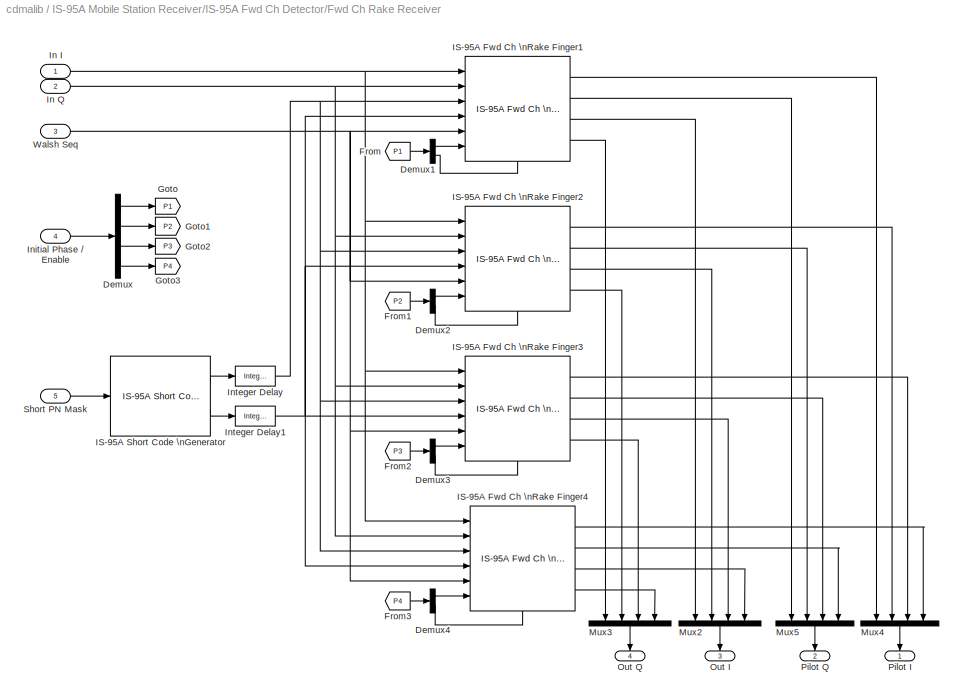
BLOCK [SubSystem] IS-95A Mobile Station Receiver/IS-95A Fwd Ch Detector/Fwd Ch Rake Receiver 
  Ports = [5, 4]
  TreatAsAtomicUnit = off
BLOCK [Demux] IS-95A Mobile Station Receiver/IS-95A Fwd Ch Detector/Fwd Ch Rake Receiver /Demux
  Ports = [1, 4]
BLOCK [Demux] IS-95A Mobile Station Receiver/IS-95A Fwd Ch Detector/Fwd Ch Rake Receiver /Demux1
  Outputs = 2
  Ports = [1, 2]
BLOCK [Demux] IS-95A Mobile Station Receiver/IS-95A Fwd Ch Detector/Fwd Ch Rake Receiver /Demux2
  Outputs = 2
  Ports = [1, 2]
BLOCK [Demux] IS-95A Mobile Station Receiver/IS-95A Fwd Ch Detector/Fwd Ch Rake Receiver /Demux3
  Outputs = 2
  Ports = [1, 2]
BLOCK [Demux] IS-95A Mobile Station Receiver/IS-95A Fwd Ch Detector/Fwd Ch Rake Receiver /Demux4
  Outputs = 2
  Ports = [1, 2]
BLOCK [From] IS-95A Mobile Station Receiver/IS-95A Fwd Ch Detector/Fwd Ch Rake Receiver /From
  CloseFcn = tagdialog Close
  GotoTag = P1
BLOCK [From] IS-95A Mobile Station Receiver/IS-95A Fwd Ch Detector/Fwd Ch Rake Receiver /From1
  CloseFcn = tagdialog Close
  GotoTag = P2
BLOCK [From] IS-95A Mobile Station Receiver/IS-95A Fwd Ch Detector/Fwd Ch Rake Receiver /From2
  CloseFcn = tagdialog Close
  GotoTag = P3
BLOCK [From] IS-95A Mobile Station Receiver/IS-95A Fwd Ch Detector/Fwd Ch Rake Receiver /From3
  CloseFcn = tagdialog Close
  GotoTag = P4
BLOCK [Goto] IS-95A Mobile Station Receiver/IS-95A Fwd Ch Detector/Fwd Ch Rake Receiver /Goto
  GotoTag = P1
  TagVisibility = local
BLOCK [Goto] IS-95A Mobile Station Receiver/IS-95A Fwd Ch Detector/Fwd Ch Rake Receiver /Goto1
  GotoTag = P2
  TagVisibility = local
BLOCK [Goto] IS-95A Mobile Station Receiver/IS-95A Fwd Ch Detector/Fwd Ch Rake Receiver /Goto2
  GotoTag = P3
  TagVisibility = local
BLOCK [Goto] IS-95A Mobile Station Receiver/IS-95A Fwd Ch Detector/Fwd Ch Rake Receiver /Goto3
  GotoTag = P4
  TagVisibility = local
BLOCK [Reference] IS-95A Mobile Station Receiver/IS-95A Fwd Ch Detector/Fwd Ch Rake Receiver /IS-95A Fwd Ch \nRake Finger1  REF=cdmalib/IS-95A Mobile Station Receiver/IS-95A Fwd Ch \nRake Finger  (lib defined in mdl_250e8a714707)
  Ports = [6, 4, 1]
  SourceBlock = cdmalib/IS-95A Mobile Station Receiver/IS-95A Fwd Ch \nRake Finger
  SourceType = IS-95A Fwd Ch Rake Finger
  buffSize = rake_buff_size
  numSymb = numSymb
  ovrSmp = rake_oversamp
  wlshOrd = wlshOrd
BLOCK [Reference] IS-95A Mobile Station Receiver/IS-95A Fwd Ch Detector/Fwd Ch Rake Receiver /IS-95A Fwd Ch \nRake Finger2  REF=cdmalib/IS-95A Mobile Station Receiver/IS-95A Fwd Ch \nRake Finger  (lib defined in mdl_250e8a714707)
  Ports = [6, 4, 1]
  SourceBlock = cdmalib/IS-95A Mobile Station Receiver/IS-95A Fwd Ch \nRake Finger
  SourceType = IS-95A Fwd Ch Rake Finger
  buffSize = rake_buff_size
  numSymb = numSymb
  ovrSmp = rake_oversamp
  wlshOrd = wlshOrd
BLOCK [Reference] IS-95A Mobile Station Receiver/IS-95A Fwd Ch Detector/Fwd Ch Rake Receiver /IS-95A Fwd Ch \nRake Finger3  REF=cdmalib/IS-95A Mobile Station Receiver/IS-95A Fwd Ch \nRake Finger  (lib defined in mdl_250e8a714707)
  Ports = [6, 4, 1]
  SourceBlock = cdmalib/IS-95A Mobile Station Receiver/IS-95A Fwd Ch \nRake Finger
  SourceType = IS-95A Fwd Ch Rake Finger
  buffSize = rake_buff_size
  numSymb = numSymb
  ovrSmp = rake_oversamp
  wlshOrd = wlshOrd
BLOCK [Reference] IS-95A Mobile Station Receiver/IS-95A Fwd Ch Detector/Fwd Ch Rake Receiver /IS-95A Fwd Ch \nRake Finger4  REF=cdmalib/IS-95A Mobile Station Receiver/IS-95A Fwd Ch \nRake Finger  (lib defined in mdl_250e8a714707)
  Ports = [6, 4, 1]
  SourceBlock = cdmalib/IS-95A Mobile Station Receiver/IS-95A Fwd Ch \nRake Finger
  SourceType = IS-95A Fwd Ch Rake Finger
  buffSize = rake_buff_size
  numSymb = numSymb
  ovrSmp = rake_oversamp
  wlshOrd = wlshOrd
BLOCK [Reference] IS-95A Mobile Station Receiver/IS-95A Fwd Ch Detector/Fwd Ch Rake Receiver /IS-95A Short Code \nGenerator  REF=cdmalib/IS-95A Common/IS-95A Short Code\nGenerator  (lib defined in mdl_250e8a714707)
  Ports = [1, 2]
  SourceBlock = cdmalib/IS-95A Common/IS-95A Short Code\nGenerator
  SourceType = IS-95A Short Code Generator
  numOut = 2^wlshOrd
  sampTime = sampTime
BLOCK [Inport] IS-95A Mobile Station Receiver/IS-95A Fwd Ch Detector/Fwd Ch Rake Receiver /In I
BLOCK [Inport] IS-95A Mobile Station Receiver/IS-95A Fwd Ch Detector/Fwd Ch Rake Receiver /In Q
  Port = 2
BLOCK [Inport] IS-95A Mobile Station Receiver/IS-95A Fwd Ch Detector/Fwd Ch Rake Receiver /Initial Phase // Enable
  Port = 4
BLOCK [Reference] IS-95A Mobile Station Receiver/IS-95A Fwd Ch Detector/Fwd Ch Rake Receiver /Integer Delay  REF=dspbdsp2/Integer Delay
  Ports = [1, 1]
  SourceBlock = dspbdsp2/Integer Delay
  SourceType = Integer Delay
  delay = rake_buff_size
  df = on
  frame = off
  ic = 0
  numChans = 1
BLOCK [Reference] IS-95A Mobile Station Receiver/IS-95A Fwd Ch Detector/Fwd Ch Rake Receiver /Integer Delay1  REF=dspbdsp2/Integer Delay
  Ports = [1, 1]
  SourceBlock = dspbdsp2/Integer Delay
  SourceType = Integer Delay
  delay = rake_buff_size
  df = on
  frame = off
  ic = 0
  numChans = 1
BLOCK [Mux] IS-95A Mobile Station Receiver/IS-95A Fwd Ch Detector/Fwd Ch Rake Receiver /Mux2
  Ports = [4, 1]
BLOCK [Mux] IS-95A Mobile Station Receiver/IS-95A Fwd Ch Detector/Fwd Ch Rake Receiver /Mux3
  Ports = [4, 1]
BLOCK [Mux] IS-95A Mobile Station Receiver/IS-95A Fwd Ch Detector/Fwd Ch Rake Receiver /Mux4
  Ports = [4, 1]
BLOCK [Mux] IS-95A Mobile Station Receiver/IS-95A Fwd Ch Detector/Fwd Ch Rake Receiver /Mux5
  Ports = [4, 1]
BLOCK [Outport] IS-95A Mobile Station Receiver/IS-95A Fwd Ch Detector/Fwd Ch Rake Receiver /Out I
  InitialOutput = 0
  Port = 3
BLOCK [Outport] IS-95A Mobile Station Receiver/IS-95A Fwd Ch Detector/Fwd Ch Rake Receiver /Out Q
  InitialOutput = 0
  Port = 4
BLOCK [Outport] IS-95A Mobile Station Receiver/IS-95A Fwd Ch Detector/Fwd Ch Rake Receiver /Pilot I
  InitialOutput = 0
BLOCK [Outport] IS-95A Mobile Station Receiver/IS-95A Fwd Ch Detector/Fwd Ch Rake Receiver /Pilot Q
  InitialOutput = 0
  Port = 2
BLOCK [Inport] IS-95A Mobile Station Receiver/IS-95A Fwd Ch Detector/Fwd Ch Rake Receiver /Short PN Mask
  Port = 5
BLOCK [Inport] IS-95A Mobile Station Receiver/IS-95A Fwd Ch Detector/Fwd Ch Rake Receiver /Walsh Seq
  Port = 3
BLOCK [Reference] IS-95A Mobile Station Receiver/IS-95A Fwd Ch Detector/IS-95A Fwd Ch\nDescrambler  REF=cdmalib/IS-95A Mobile Station Receiver/IS-95A Fwd Ch\nDescrambler  (lib defined in mdl_250e8a714707)
  Ports = [5, 1]
  SourceBlock = cdmalib/IS-95A Mobile Station Receiver/IS-95A Fwd Ch\nDescrambler
  SourceType = IS-95A Fwd Ch Descrambler
  rake_buff_size = rake_buff_size
  rateSet = Rate Set I
BLOCK [Reference] IS-95A Mobile Station Receiver/IS-95A Fwd Ch Detector/IS-95A Fwd Ch\nRake Demodulator  REF=cdmalib/IS-95A Mobile Station Receiver/IS-95A Fwd Ch\nRake Demodulator  (lib defined in mdl_250e8a714707)
  Ports = [4, 4]
  SourceBlock = cdmalib/IS-95A Mobile Station Receiver/IS-95A Fwd Ch\nRake Demodulator
  SourceType = IS-95A Fwd Ch Rake Demodulator
  num_symb = 1
BLOCK [Reference] IS-95A Mobile Station Receiver/IS-95A Fwd Ch Detector/Integer Delay  REF=dspbdsp2/Integer Delay
  Ports = [1, 1]
  SourceBlock = dspbdsp2/Integer Delay
  SourceType = Integer Delay
  delay = rake_buff_size
  df = on
  frame = off
  ic = 0
  numChans = 1
BLOCK [Inport] IS-95A Mobile Station Receiver/IS-95A Fwd Ch Detector/Path Delay//Enable
  Port = 3
BLOCK [Inport] IS-95A Mobile Station Receiver/IS-95A Fwd Ch Detector/Rx Signal
  Port = 2
BLOCK [Inport] IS-95A Mobile Station Receiver/IS-95A Fwd Ch Detector/Short PN Mask
  Port = 4
BLOCK [Inport] IS-95A Mobile Station Receiver/IS-95A Fwd Ch Detector/Walsh Seq
BLOCK [SubSystem] IS-95A Mobile Station Receiver/IS-95A Fwd Ch \nRake Finger
  MaskCallbackString = |||
  MaskDescription = Correlate the input signal over each Walsh code interval with the short PN code and the Walsh code sequences supplied.
  MaskEnableString = on,on,on,on
  MaskHelp = web(cdmaweb);
  MaskIconFrame = on
  MaskIconOpaque = off
  MaskIconRotate = none
  MaskIconUnits = autoscale
  MaskInitialization = is95fwdchrakefinger;\n\n
  MaskPromptString = Walsh order:|Input frame size (in number of symbols):|Tracking buffer size (in number of symbols):|Oversampling rate:
  MaskSelfModifiable = on
  MaskStyleString = edit,edit,edit,edit
  MaskToolTipString = on,on,on,on
  MaskTunableValueString = off,off,off,off
  MaskType = IS-95A Fwd Ch Rake Finger
  MaskValueString = 6|1|3|8
  MaskVarAliasString = ,,,
  MaskVariables = wlshOrd=@1;numSymb=@2;buffSize=@3;ovrSmp=@4;
  MaskVisibilityString = on,on,on,on
  Ports = [6, 4, 1]
  TreatAsAtomicUnit = on
BLOCK [Outport] IS-95A Mobile Station Receiver/IS-95A Fwd Ch \nRake Finger/Data I
  InitialOutput = 0
  Port = 3
BLOCK [Outport] IS-95A Mobile Station Receiver/IS-95A Fwd Ch \nRake Finger/Data Q
  InitialOutput = 0
  Port = 4
BLOCK [EnablePort] IS-95A Mobile Station Receiver/IS-95A Fwd Ch \nRake Finger/Enable
  Ports = []
  StatesWhenEnabling = reset
BLOCK [S-Function] IS-95A Mobile Station Receiver/IS-95A Fwd Ch \nRake Finger/IS-95A Fwd Ch \nRake Finger
  FunctionName = sis95rakefinger
  MaskCallbackString = |||
  MaskDescription = Correlates the input signal over each Walsh code interval with the short PN code and Walsh code sequences supplied.
  MaskDisplay = port_label('input', 1, 'In I');\nport_label('input', 2, 'In Q');\nport_label('input', 3, 'PN I');\nport_label('input', 4, 'PN Q');\nport_label('input', 5, 'Walsh Seq');\nport_label('input', 6, 'Path Delay');\nport_label('output', 1, 'Pilot I');\nport_label('output', 2, 'Pilot Q');\nport_label('output', 3, 'Out I');\nport_label('output', 4, 'Out Q');
  MaskEnableString = on,on,on,on
  MaskHelp = web(cdmaweb);
  MaskIconFrame = on
  MaskIconOpaque = on
  MaskIconRotate = none
  MaskIconUnits = autoscale
  MaskInitialization = integLen=2^wlshOrd;
  MaskPromptString = Walsh order:|Input frame size (in number of symbols):|Tracking buffer size (in number of symbols):|Oversampling rate:
  MaskSelfModifiable = on
  MaskStyleString = edit,edit,edit,edit
  MaskToolTipString = on,on,on,on
  MaskTunableValueString = on,on,on,on
  MaskType = IS-95A Fwd Ch Rake Finger
  MaskValueString = wlshOrd|numSymb|buffSize|ovrSmp
  MaskVarAliasString = ,,,
  MaskVariables = wlshOrd=@1;numSymb=@2;buffSize=@3;ovrSmp=@4;
  MaskVisibilityString = on,on,on,on
  Parameters = numSymb buffSize integLen ovrSmp
  Ports = [6, 4]
BLOCK [Inport] IS-95A Mobile Station Receiver/IS-95A Fwd Ch \nRake Finger/PN I
  Port = 3
BLOCK [Inport] IS-95A Mobile Station Receiver/IS-95A Fwd Ch \nRake Finger/PN Q
  Port = 4
BLOCK [Inport] IS-95A Mobile Station Receiver/IS-95A Fwd Ch \nRake Finger/Path Delay
  Port = 6
BLOCK [Outport] IS-95A Mobile Station Receiver/IS-95A Fwd Ch \nRake Finger/Pilot I
  InitialOutput = 0
BLOCK [Outport] IS-95A Mobile Station Receiver/IS-95A Fwd Ch \nRake Finger/Pilot Q
  InitialOutput = 0
  Port = 2
BLOCK [Inport] IS-95A Mobile Station Receiver/IS-95A Fwd Ch \nRake Finger/Rx I
BLOCK [Inport] IS-95A Mobile Station Receiver/IS-95A Fwd Ch \nRake Finger/Rx Q
  Port = 2
BLOCK [Inport] IS-95A Mobile Station Receiver/IS-95A Fwd Ch \nRake Finger/Walsh Seq
  Port = 5
BLOCK [SubSystem] IS-95A Mobile Station Receiver/IS-95A Fwd Ch\nDescrambler
  MaskCallbackString = |
  MaskDescription = Perform power bit extraction and descrambling for each rake finger and combine the signals from all the fingers.
  MaskEnableString = on,on
  MaskHelp = web(cdmaweb);
  MaskIconFrame = on
  MaskIconOpaque = on
  MaskIconRotate = none
  MaskIconUnits = autoscale
  MaskInitialization = is95fwdchdescramble;\n
  MaskPromptString = Rate set:|Tracking buffer size:
  MaskSelfModifiable = on
  MaskStyleString = popup(Rate Set I|Rate Set II),edit
  MaskToolTipString = on,on
  MaskTunableValueString = off,off
  MaskType = IS-95A Fwd Ch Descrambler
  MaskValueString = Rate Set I|3
  MaskVarAliasString = ,
  MaskVariables = rateSet=@1;rake_buff_size=@2;
  MaskVisibilityString = on,on
  Ports = [5, 1]
  TreatAsAtomicUnit = off
BLOCK [SubSystem] IS-95A Mobile Station Receiver/IS-95A Fwd Ch\nDescrambler/Binary to Bipolar
  MaskDescription = Convert binary (0/1) inputs to bipolar (1/-1) outputs.
  MaskIconFrame = on
  MaskIconOpaque = on
  MaskIconRotate = none
  MaskIconUnits = autoscale
  MaskType = Binary to Bipolar Transformation
  Ports = [1, 1]
  TreatAsAtomicUnit = off
BLOCK [Inport] IS-95A Mobile Station Receiver/IS-95A Fwd Ch\nDescrambler/Binary to Bipolar/0//1
BLOCK [Outport] IS-95A Mobile Station Receiver/IS-95A Fwd Ch\nDescrambler/Binary to Bipolar/1//-1
  InitialOutput = 0
BLOCK [Reference] IS-95A Mobile Station Receiver/IS-95A Fwd Ch\nDescrambler/Binary to Bipolar/Discrete\nConstant  REF=dspsrcs2/Discrete\nConstant
  Ports = [0, 1]
  SourceBlock = dspsrcs2/Discrete\nConstant
  SourceType = Discrete Constant
  Ts = 1/(50*384)
  Value = 1
BLOCK [Gain] IS-95A Mobile Station Receiver/IS-95A Fwd Ch\nDescrambler/Binary to Bipolar/Gain
  Gain = 2
BLOCK [Sum] IS-95A Mobile Station Receiver/IS-95A Fwd Ch\nDescrambler/Binary to Bipolar/Sum
  IconShape = round
  Inputs = |-+
  Ports = [2, 1]
BLOCK [Reference] IS-95A Mobile Station Receiver/IS-95A Fwd Ch\nDescrambler/Buffer  REF=dspbuff2/Buffer
  N = 384
  Ports = [1, 1]
  SourceBlock = dspbuff2/Buffer
  SourceType = Buffer
  V = 0
  ic = 0
BLOCK [Inport] IS-95A Mobile Station Receiver/IS-95A Fwd Ch\nDescrambler/Finger 1
BLOCK [Inport] IS-95A Mobile Station Receiver/IS-95A Fwd Ch\nDescrambler/Finger 2
  Port = 2
BLOCK [Inport] IS-95A Mobile Station Receiver/IS-95A Fwd Ch\nDescrambler/Finger 3
  Port = 3
BLOCK [Inport] IS-95A Mobile Station Receiver/IS-95A Fwd Ch\nDescrambler/Finger 4
  Port = 4
BLOCK [Reference] IS-95A Mobile Station Receiver/IS-95A Fwd Ch\nDescrambler/IS-95A Fwd Ch\nPower Bit Extractor1  REF=cdmalib/IS-95A Mobile Station Receiver/IS-95A Fwd Ch\nPower Bit Extractor  (lib defined in mdl_250e8a714707)
  Ports = [2, 2, 1]
  SourceBlock = cdmalib/IS-95A Mobile Station Receiver/IS-95A Fwd Ch\nPower Bit Extractor
  SourceType = IS-95A Fwd Ch Power Bit Extractor
  init_loc = 0
  num_symb = 1
  rateSet = Rate Set I
BLOCK [Reference] IS-95A Mobile Station Receiver/IS-95A Fwd Ch\nDescrambler/IS-95A Fwd Ch\nPower Bit Extractor2  REF=cdmalib/IS-95A Mobile Station Receiver/IS-95A Fwd Ch\nPower Bit Extractor  (lib defined in mdl_250e8a714707)
  Ports = [2, 2, 1]
  SourceBlock = cdmalib/IS-95A Mobile Station Receiver/IS-95A Fwd Ch\nPower Bit Extractor
  SourceType = IS-95A Fwd Ch Power Bit Extractor
  init_loc = 0
  num_symb = 1
  rateSet = Rate Set I
BLOCK [Reference] IS-95A Mobile Station Receiver/IS-95A Fwd Ch\nDescrambler/IS-95A Fwd Ch\nPower Bit Extractor3  REF=cdmalib/IS-95A Mobile Station Receiver/IS-95A Fwd Ch\nPower Bit Extractor  (lib defined in mdl_250e8a714707)
  Ports = [2, 2, 1]
  SourceBlock = cdmalib/IS-95A Mobile Station Receiver/IS-95A Fwd Ch\nPower Bit Extractor
  SourceType = IS-95A Fwd Ch Power Bit Extractor
  init_loc = 0
  num_symb = 1
  rateSet = Rate Set I
BLOCK [Reference] IS-95A Mobile Station Receiver/IS-95A Fwd Ch\nDescrambler/IS-95A Fwd Ch\nPower Bit Extractor4  REF=cdmalib/IS-95A Mobile Station Receiver/IS-95A Fwd Ch\nPower Bit Extractor  (lib defined in mdl_250e8a714707)
  Ports = [2, 2, 1]
  SourceBlock = cdmalib/IS-95A Mobile Station Receiver/IS-95A Fwd Ch\nPower Bit Extractor
  SourceType = IS-95A Fwd Ch Power Bit Extractor
  init_loc = 0
  num_symb = 1
  rateSet = Rate Set I
BLOCK [Reference] IS-95A Mobile Station Receiver/IS-95A Fwd Ch\nDescrambler/Integer Delay  REF=dspbdsp2/Integer Delay
  Ports = [1, 1]
  SourceBlock = dspbdsp2/Integer Delay
  SourceType = Integer Delay
  delay = 384 - rake_buff_size
  df = on
  frame = off
  ic = 0
  numChans = 1
BLOCK [Inport] IS-95A Mobile Station Receiver/IS-95A Fwd Ch\nDescrambler/Long Code
  Port = 5
BLOCK [Product] IS-95A Mobile Station Receiver/IS-95A Fwd Ch\nDescrambler/Product
  Ports = [2, 1]
BLOCK [Outport] IS-95A Mobile Station Receiver/IS-95A Fwd Ch\nDescrambler/SD Out
  InitialOutput = 0
BLOCK [SubSystem] IS-95A Mobile Station Receiver/IS-95A Fwd Ch\nDescrambler/Start Time FR
  Ports = [0, 1]
  TreatAsAtomicUnit = off
BLOCK [DigitalClock] IS-95A Mobile Station Receiver/IS-95A Fwd Ch\nDescrambler/Start Time FR/Digital Clock
  SampleTime = 1/50/384
BLOCK [Outport] IS-95A Mobile Station Receiver/IS-95A Fwd Ch\nDescrambler/Start Time FR/Enable
  InitialOutput = 0
BLOCK [RelationalOperator] IS-95A Mobile Station Receiver/IS-95A Fwd Ch\nDescrambler/Start Time FR/Relational\nOperator
BLOCK [Constant] IS-95A Mobile Station Receiver/IS-95A Fwd Ch\nDescrambler/Start Time FR/Start time
  Value = rake_buff_size*(1/50/384)
BLOCK [Sum] IS-95A Mobile Station Receiver/IS-95A Fwd Ch\nDescrambler/Sum1
  IconShape = round
  Inputs = ++|++
  Ports = [4, 1]
BLOCK [Terminator] IS-95A Mobile Station Receiver/IS-95A Fwd Ch\nDescrambler/Terminator10
BLOCK [Terminator] IS-95A Mobile Station Receiver/IS-95A Fwd Ch\nDescrambler/Terminator11
BLOCK [Terminator] IS-95A Mobile Station Receiver/IS-95A Fwd Ch\nDescrambler/Terminator8
BLOCK [Terminator] IS-95A Mobile Station Receiver/IS-95A Fwd Ch\nDescrambler/Terminator9
BLOCK [SubSystem] IS-95A Mobile Station Receiver/IS-95A Fwd Ch\nPower Bit Extractor
  MaskCallbackString = ||
  MaskDescription = Extract power control bits from the forward Traffic channel frame.
  MaskEnableString = on,on,on
  MaskHelp = web(cdmaweb);
  MaskIconFrame = on
  MaskIconOpaque = on
  MaskIconRotate = none
  MaskIconUnits = normalized
  MaskInitialization = is95fwdchpwrbitext;
  MaskPromptString = Rate set:|Input frame size:|Initial power bit location:
  MaskSelfModifiable = on
  MaskStyleString = popup(Rate Set I|Rate Set II),edit,edit
  MaskToolTipString = on,on,on
  MaskTunableValueString = off,off,off
  MaskType = IS-95A Fwd Ch Power Bit Extractor
  MaskValueString = Rate Set I|1|0
  MaskVarAliasString = ,,
  MaskVariables = rateSet=@1;num_symb=@2;init_loc=@3;
  MaskVisibilityString = on,on,on
  Ports = [2, 2, 1]
  TreatAsAtomicUnit = on
BLOCK [Outport] IS-95A Mobile Station Receiver/IS-95A Fwd Ch\nPower Bit Extractor/Data Out
  InitialOutput = 0
BLOCK [EnablePort] IS-95A Mobile Station Receiver/IS-95A Fwd Ch\nPower Bit Extractor/Enable
  Ports = []
  StatesWhenEnabling = reset
BLOCK [Inport] IS-95A Mobile Station Receiver/IS-95A Fwd Ch\nPower Bit Extractor/Finger In
BLOCK [S-Function] IS-95A Mobile Station Receiver/IS-95A Fwd Ch\nPower Bit Extractor/IS-95A Fwd Ch\nPower Bit Extractor
  FunctionName = sis95pwrbitext
  MaskCallbackString = ||
  MaskDescription = Extracts power bits from the received data.
  MaskDisplay = port_label('input', 1, 'In');\nport_label('input', 2, 'Long Code');\nport_label('output', 1, 'Out');\nport_label('output', 2, 'Power Bits');
  MaskEnableString = on,on,on
  MaskHelp = web(cdmaweb);
  MaskIconFrame = on
  MaskIconOpaque = on
  MaskIconRotate = none
  MaskIconUnits = autoscale
  MaskPromptString = Rate set:|Input frame size:|Initial power bit location:
  MaskSelfModifiable = on
  MaskStyleString = popup(Rate Set I|Rate Set II),edit,edit
  MaskToolTipString = on,on,on
  MaskTunableValueString = on,on,on
  MaskType = IS-95A Fwd Ch Power Bit Extractor
  MaskValueString = Rate Set I|num_symb|init_loc
  MaskVarAliasString = ,,
  MaskVariables = rateSet=@1;num_symb=@2;init_loc=@3;
  MaskVisibilityString = on,on,on
  Parameters = rateSet num_symb init_loc
  Ports = [2, 2]
BLOCK [Inport] IS-95A Mobile Station Receiver/IS-95A Fwd Ch\nPower Bit Extractor/Long Code
  Port = 2
BLOCK [Outport] IS-95A Mobile Station Receiver/IS-95A Fwd Ch\nPower Bit Extractor/Power Bits
  InitialOutput = 0
  Port = 2
BLOCK [S-Function] IS-95A Mobile Station Receiver/IS-95A Fwd Ch\nRake Demodulator
  FunctionName = sis95rakedemod
  MaskDescription = Demodulate the data obtained from the four rake receiver fingers utilizing the pilot signal for each finger.
  MaskDisplay = port_label('input', 1, 'Pilot I');\nport_label('input', 2, 'Pilot Q');\nport_label('input', 3, 'Data I');\nport_label('input', 4, 'Data Q');\nport_label('output', 1, 'Finger 1');\nport_label('output', 2, 'Finger 2');\nport_label('output', 3, 'Finger 3');\nport_label('output', 4, 'Finger 4');\n
  MaskEnableString = on
  MaskHelp = web(cdmaweb);
  MaskIconFrame = on
  MaskIconOpaque = on
  MaskIconRotate = none
  MaskIconUnits = autoscale
  MaskPromptString = Input frame size per finger:
  MaskStyleString = edit
  MaskToolTipString = on
  MaskTunableValueString = off
  MaskType = IS-95A Fwd Ch Rake Demodulator
  MaskValueString = 1
  MaskVariables = num_symb=@1;
  MaskVisibilityString = on
  Parameters = num_symb 4
  Ports = [4, 4]
BLOCK [S-Function] IS-95A Mobile Station Receiver/IS-95A Fwd Ch\nViterbi Decoder
  FunctionName = sis95dec
  MaskCallbackString = |||
  MaskDescription = Perform optimum decoding for a convolutionally encoded forward Sync, Paging or Traffic channel frame.
  MaskDisplay = port_label('input', 1, 'Rate');\nport_label('input', 2, 'Frame In');\nport_label('output', 2, 'Metric');\nport_label('output', 1, 'Frame Out');
  MaskEnableString = on,on,on,on
  MaskHelp = web(cdmaweb);
  MaskIconFrame = on
  MaskIconOpaque = on
  MaskIconRotate = none
  MaskIconUnits = autoscale
  MaskPromptString = Rate set:|Channel type:|Ratio of trace-back length to frame length:|Ratio of decoding length to frame length:
  MaskStyleString = popup(Rate Set I|Rate Set II),popup(Sync|Paging|Traffic),edit,edit
  MaskToolTipString = on,on,on,on
  MaskTunableValueString = off,off,off,off
  MaskType = IS-95A Fwd Ch Viterbi Decoder
  MaskValueString = Rate Set I|Traffic|1|1
  MaskVarAliasString = ,,,
  MaskVariables = rateSet=@1;chType=@2;traceBackLenRatio=@3;decodeLenRatio=@4;
  MaskVisibilityString = on,on,on,on
  Parameters = rateSet chType traceBackLenRatio decodeLenRatio
  Ports = [2, 2]
BLOCK [SubSystem] IS-95A Mobile Station Transmitter
  MaskDisplay = disp('IS-95A \\nMobile Station\\nTransmitter')\n
  MaskIconFrame = on
  MaskIconOpaque = on
  MaskIconRotate = none
  MaskIconUnits = autoscale
  Ports = []
  ShowPortLabels = off
  TreatAsAtomicUnit = off
BLOCK [SubSystem] IS-95A Mobile Station Transmitter/IS-95A Rev Ch Walsh\nModulation and Spreading
  MaskCallbackString = |||
  MaskDescription = Perform Walsh code modulation, spreading with the long code, and power group randomization on a reverse Access or Traffic channel frame.
  MaskEnableString = on,on,on,on
  MaskHelp = web(cdmaweb);
  MaskIconFrame = on
  MaskIconOpaque = on
  MaskIconRotate = none
  MaskIconUnits = autoscale
  MaskInitialization = is95revchmodspread;\n
  MaskPromptString = Channel type:|Long code mask:|Walsh order:|Sample time:
  MaskSelfModifiable = on
  MaskStyleString = popup(Access|Traffic),edit,edit,edit
  MaskToolTipString = on,on,on,on
  MaskTunableValueString = off,off,off,off
  MaskType = IS-95A Rev Ch Walsh Modulation and Spreading
  MaskValueString = Traffic|1|6|1/(50*384)
  MaskVarAliasString = ,,,
  MaskVariables = chType=@1;lngCdMask=@2;wlshOrd=@3;sampTime=@4;
  MaskVisibilityString = on,on,on,on
  Ports = [2, 2]
  TreatAsAtomicUnit = off
BLOCK [SubSystem] IS-95A Mobile Station Transmitter/IS-95A Rev Ch Walsh\nModulation and Spreading/Binary to Bipolar
  MaskDescription = Convert binary (0/1) inputs to bipolar (1/-1) outputs.
  MaskIconFrame = on
  MaskIconOpaque = on
  MaskIconRotate = none
  MaskIconUnits = autoscale
  MaskType = Binary to Bipolar Transformation
  Ports = [1, 1]
  TreatAsAtomicUnit = off
BLOCK [Inport] IS-95A Mobile Station Transmitter/IS-95A Rev Ch Walsh\nModulation and Spreading/Binary to Bipolar/0//1
BLOCK [Outport] IS-95A Mobile Station Transmitter/IS-95A Rev Ch Walsh\nModulation and Spreading/Binary to Bipolar/1//-1
  InitialOutput = 0
BLOCK [Reference] IS-95A Mobile Station Transmitter/IS-95A Rev Ch Walsh\nModulation and Spreading/Binary to Bipolar/Discrete\nConstant  REF=dspsrcs2/Discrete\nConstant
  Ports = [0, 1]
  SourceBlock = dspsrcs2/Discrete\nConstant
  SourceType = Discrete Constant
  Ts = 4*sampTime
  Value = 1
BLOCK [Gain] IS-95A Mobile Station Transmitter/IS-95A Rev Ch Walsh\nModulation and Spreading/Binary to Bipolar/Gain
  Gain = 2
BLOCK [Sum] IS-95A Mobile Station Transmitter/IS-95A Rev Ch Walsh\nModulation and Spreading/Binary to Bipolar/Sum
  IconShape = round
  Inputs = |-+
  Ports = [2, 1]
BLOCK [Outport] IS-95A Mobile Station Transmitter/IS-95A Rev Ch Walsh\nModulation and Spreading/Data Out
  InitialOutput = 0
BLOCK [Reference] IS-95A Mobile Station Transmitter/IS-95A Rev Ch Walsh\nModulation and Spreading/Downsample  REF=dspbdsp2/Downsample
  N = (2^wlshOrd)*4
  Ports = [1, 1]
  SourceBlock = dspbdsp2/Downsample
  SourceType = Downsample
  frame = on
  ic = 0
  mode = Maintain input frame rate
  nchans = 1
  phase = 0
  sample_mode = off
BLOCK [Inport] IS-95A Mobile Station Transmitter/IS-95A Rev Ch Walsh\nModulation and Spreading/Frame In
  Port = 2
BLOCK [Outport] IS-95A Mobile Station Transmitter/IS-95A Rev Ch Walsh\nModulation and Spreading/Gating Sig
  InitialOutput = 0
  Port = 2
BLOCK [Reference] IS-95A Mobile Station Transmitter/IS-95A Rev Ch Walsh\nModulation and Spreading/IS-95A Long \nCode Generator  REF=cdmalib/IS-95A Common/IS-95A Long\nCode Generator  (lib defined in mdl_250e8a714707)
  Ports = [0, 1]
  SourceBlock = cdmalib/IS-95A Common/IS-95A Long\nCode Generator
  SourceType = IS-95A Long Code Generator
  num_symb = 4*(2^wlshOrd)
  tx_lc_dec_ratio = 1
  tx_lc_init_mask = lngCdMask
  tx_lc_init_state = []
  tx_sample_time = 4*sampTime
BLOCK [Reference] IS-95A Mobile Station Transmitter/IS-95A Rev Ch Walsh\nModulation and Spreading/IS-95A Rev Ch \nWalsh Modulator  REF=cdmalib/IS-95A Mobile Station Transmitter/IS-95A Rev Ch\nWalsh Modulator  (lib defined in mdl_250e8a714707)
  Ports = [1, 1]
  SourceBlock = cdmalib/IS-95A Mobile Station Transmitter/IS-95A Rev Ch\nWalsh Modulator
  SourceType = IS-95A Rev Ch Walsh Modulator
  numSymb = wlshOrd
  walshOrder = wlshOrd
BLOCK [Reference] IS-95A Mobile Station Transmitter/IS-95A Rev Ch Walsh\nModulation and Spreading/IS-95A Rev Ch\nBurst Randomizer  REF=cdmalib/IS-95A Mobile Station Transmitter/IS-95A Rev Ch\nBurst Randomizer  (lib defined in mdl_250e8a714707)
  Ports = [2, 1]
  SourceBlock = cdmalib/IS-95A Mobile Station Transmitter/IS-95A Rev Ch\nBurst Randomizer
  SourceType = IS-95A Rev Ch Burst Randomizer
  chType = Traffic
  initLCSt = []
BLOCK [Gain] IS-95A Mobile Station Transmitter/IS-95A Rev Ch Walsh\nModulation and Spreading/Normalization Gain
  Gain = 1/sqrt(2)
BLOCK [Product] IS-95A Mobile Station Transmitter/IS-95A Rev Ch Walsh\nModulation and Spreading/Product
  Inputs = 3
  Ports = [3, 1]
BLOCK [Inport] IS-95A Mobile Station Transmitter/IS-95A Rev Ch Walsh\nModulation and Spreading/Rate
BLOCK [Reference] IS-95A Mobile Station Transmitter/IS-95A Rev Ch Walsh\nModulation and Spreading/Rebuffer  REF=dspbuff2/Rebuffer
  N = 2^wlshOrd
  Ports = [1, 1]
  SourceBlock = dspbuff2/Rebuffer
  SourceType = Rebuffer
  Specify_Out_Size = on
  V = 0
  frame = on
  ic = 0
  num_chans = 1
BLOCK [Reference] IS-95A Mobile Station Transmitter/IS-95A Rev Ch Walsh\nModulation and Spreading/Rebuffer1  REF=dspbuff2/Rebuffer
  N = wlshOrd
  Ports = [1, 1]
  SourceBlock = dspbuff2/Rebuffer
  SourceType = Rebuffer
  Specify_Out_Size = on
  V = 0
  frame = on
  ic = 0
  num_chans = 1
BLOCK [Reference] IS-95A Mobile Station Transmitter/IS-95A Rev Ch Walsh\nModulation and Spreading/Repeat1  REF=dspbdsp2/Repeat
  N = 4
  Ports = [1, 1]
  SourceBlock = dspbdsp2/Repeat
  SourceType = Repeat
  frame = on
  ic = 0
  mode = Maintain input frame rate
  nchans = 1
BLOCK [ZeroOrderHold] IS-95A Mobile Station Transmitter/IS-95A Rev Ch Walsh\nModulation and Spreading/Zero-Order\nHold
  SampleTime = sampTime
BLOCK [S-Function] IS-95A Mobile Station Transmitter/IS-95A Rev Ch\nBurst Randomizer
  FunctionName = sis95rcrandomizer
  MaskCallbackString = |
  MaskDescription = Generate a pseudorandom masking pattern of 0's and 1's that can be used to mask redundant power groups.
  MaskDisplay = port_label('input', 1, 'Rate');\nport_label('input', 2, 'Long Code');\n
  MaskEnableString = on,on
  MaskHelp = web(cdmaweb);
  MaskIconFrame = on
  MaskIconOpaque = on
  MaskIconRotate = none
  MaskIconUnits = autoscale
  MaskPromptString = Channel type:|Randomizer initial state:
  MaskStyleString = popup(Access|Traffic),edit
  MaskToolTipString = on,on
  MaskTunableValueString = off,off
  MaskType = IS-95A Rev Ch Burst Randomizer
  MaskValueString = Traffic|[]
  MaskVarAliasString = ,
  MaskVariables = chType=@1;initLCSt=@2;
  MaskVisibilityString = on,on
  Parameters = chType initLCSt
  Ports = [2, 1]
BLOCK [S-Function] IS-95A Mobile Station Transmitter/IS-95A Rev Ch\nConvolutional Encoder
  FunctionName = sis95rcenc
  MaskCallbackString = ||
  MaskDescription = Convolutionally encode the bits of the reverse Access or Traffic channel frame.
  MaskDisplay = port_label('input', 1, 'Rate');\nport_label('input', 2, 'Frame In');\n
  MaskEnableString = on,on,on
  MaskHelp = web(cdmaweb);
  MaskIconFrame = on
  MaskIconOpaque = on
  MaskIconRotate = none
  MaskIconUnits = autoscale
  MaskPromptString = Rate set:|Channel type:|Initial encoder state:
  MaskStyleString = popup(Rate Set I|Rate Set II),popup(Access|Traffic),edit
  MaskToolTipString = on,on,on
  MaskTunableValueString = off,off,off
  MaskType = IS-95A Rev Ch Convolutional Encoder
  MaskValueString = Rate Set I|Traffic|[]
  MaskVarAliasString = ,,
  MaskVariables = rate_set=@1;ch_type=@2;enc_state=@3;
  MaskVisibilityString = on,on,on
  Parameters = ch_type rate_set enc_state
  Ports = [2, 1]
BLOCK [S-Function] IS-95A Mobile Station Transmitter/IS-95A Rev Ch\nInterleaver//Deinterleaver
  FunctionName = sis95rcint
  MaskCallbackString = |
  MaskDescription = Interleave or deinterleave the symbols of the reverse Access or Traffic channel frame.
  MaskDisplay = port_label('input', 1, 'Rate');\nport_label('input', 2, 'Frame In');
  MaskEnableString = on,on
  MaskHelp = web(cdmaweb);
  MaskIconFrame = on
  MaskIconOpaque = on
  MaskIconRotate = none
  MaskIconUnits = autoscale
  MaskInitialization = is95revchinterleaver;
  MaskPromptString = Channel type:|Function:
  MaskStyleString = popup(Access|Traffic),popup(Interleaver|Deinterleaver)
  MaskToolTipString = on,on
  MaskTunableValueString = off,off
  MaskType = IS-95A Rev Ch Interleaver/Deinterleaver
  MaskValueString = Traffic|Interleaver
  MaskVarAliasString = ,
  MaskVariables = ch_type=@1;int_select=@2;
  MaskVisibilityString = on,on
  Parameters = ch_type rlinttable int_option
  Ports = [2, 1]
BLOCK [S-Function] IS-95A Mobile Station Transmitter/IS-95A Rev Ch\nRepeater//Derepeater
  FunctionName = sis95rcrep
  MaskCallbackString = |
  MaskDescription = Repeat or derepeat the symbols of the convolutionally encoded frame for the reverse Access or Traffic channel.
  MaskDisplay = port_label('input', 1, 'Rate');\nport_label('input', 2, 'Frame In');\n
  MaskEnableString = on,on
  MaskHelp = web(cdmaweb);
  MaskIconFrame = on
  MaskIconOpaque = on
  MaskIconRotate = none
  MaskIconUnits = autoscale
  MaskInitialization = is95revchrepeater;
  MaskPromptString = Channel type:|Function:
  MaskStyleString = popup(Access|Traffic),popup(Repeater|Derepeater)
  MaskToolTipString = on,on
  MaskTunableValueString = off,off
  MaskType = IS-95A Rev Ch Repeater/Derepeater
  MaskValueString = Traffic|Derepeater
  MaskVarAliasString = ,
  MaskVariables = ch_type=@1;rep_select=@2;
  MaskVisibilityString = on,on
  Parameters = ch_type rep_option
  Ports = [2, 1]
BLOCK [S-Function] IS-95A Mobile Station Transmitter/IS-95A Rev Ch\nWalsh Modulator
  FunctionName = sis95walshmod
  MaskCallbackString = |
  MaskDescription = Modulate the input data symbols with the Walsh code sequences.\nThe length of the input vector must be an integer multiple of the Walsh order.
  MaskDisplay = disp('IS-95A Rev Ch \\nWalsh Modulator');
  MaskEnableString = on,on
  MaskHelp = web(cdmaweb);
  MaskIconFrame = on
  MaskIconOpaque = on
  MaskIconRotate = none
  MaskIconUnits = autoscale
  MaskPromptString = Walsh order:|Input vector length:
  MaskStyleString = edit,edit
  MaskToolTipString = on,on
  MaskTunableValueString = off,off
  MaskType = IS-95A Rev Ch Walsh Modulator
  MaskValueString = 6|6
  MaskVarAliasString = ,
  MaskVariables = walshOrder=@1;numSymb=@2;
  MaskVisibilityString = on,on
  Parameters = walshOrder numSymb
  Ports = [1, 1]
ANNOTATION (root): CDMA Reference Blockset Library 1.0.2\nCopyright 2000-2002 The MathWorks, Inc. and ALGOREX, Inc.
ANNOTATION (root): Forward Channel
ANNOTATION (root): Reverse Channel
NET IS-95A Base Station Receiver/IS-95A Rev Ch Detector/ IS-95A Long \nCode Generator:1 -> IS-95A Base Station Receiver/IS-95A Rev Ch Detector/Rev Ch Rake Receiver:3, IS-95A Base Station Receiver/IS-95A Rev Ch Detector/Rev Ch Randomizer\nGating Signal Generator:2
LINE IS-95A Base Station Receiver/IS-95A Rev Ch Detector/Complex to\nReal-Imag:1 -> IS-95A Base Station Receiver/IS-95A Rev Ch Detector/Rev Ch Rake Receiver:1
LINE IS-95A Base Station Receiver/IS-95A Rev Ch Detector/Complex to\nReal-Imag:2 -> IS-95A Base Station Receiver/IS-95A Rev Ch Detector/Rev Ch Rake Receiver:2
LINE IS-95A Base Station Receiver/IS-95A Rev Ch Detector/Path Delay//Enable:1 -> IS-95A Base Station Receiver/IS-95A Rev Ch Detector/Rev Ch Rake Receiver:4
LINE IS-95A Base Station Receiver/IS-95A Rev Ch Detector/Product1:1 -> IS-95A Base Station Receiver/IS-95A Rev Ch Detector/Soft Dec:1
LINE IS-95A Base Station Receiver/IS-95A Rev Ch Detector/Product:1 -> IS-95A Base Station Receiver/IS-95A Rev Ch Detector/Hard Dec:1
LINE IS-95A Base Station Receiver/IS-95A Rev Ch Detector/Rate:1 -> IS-95A Base Station Receiver/IS-95A Rev Ch Detector/Rev Ch Randomizer\nGating Signal Generator:1
NET IS-95A Base Station Receiver/IS-95A Rev Ch Detector/Repeat:1 -> IS-95A Base Station Receiver/IS-95A Rev Ch Detector/Product1:2, IS-95A Base Station Receiver/IS-95A Rev Ch Detector/Product:2
LINE IS-95A Base Station Receiver/IS-95A Rev Ch Detector/Rev Ch Rake Receiver/Binary to Bipolar/0//1:1 -> IS-95A Base Station Receiver/IS-95A Rev Ch Detector/Rev Ch Rake Receiver/Binary to Bipolar/Gain:1
LINE IS-95A Base Station Receiver/IS-95A Rev Ch Detector/Rev Ch Rake Receiver/Binary to Bipolar/Discrete\nConstant:1 -> IS-95A Base Station Receiver/IS-95A Rev Ch Detector/Rev Ch Rake Receiver/Binary to Bipolar/Sum:2
LINE IS-95A Base Station Receiver/IS-95A Rev Ch Detector/Rev Ch Rake Receiver/Binary to Bipolar/Gain:1 -> IS-95A Base Station Receiver/IS-95A Rev Ch Detector/Rev Ch Rake Receiver/Binary to Bipolar/Sum:1
LINE IS-95A Base Station Receiver/IS-95A Rev Ch Detector/Rev Ch Rake Receiver/Binary to Bipolar/Sum:1 -> IS-95A Base Station Receiver/IS-95A Rev Ch Detector/Rev Ch Rake Receiver/Binary to Bipolar/1//-1:1
LINE IS-95A Base Station Receiver/IS-95A Rev Ch Detector/Rev Ch Rake Receiver/Binary to Bipolar:1 -> IS-95A Base Station Receiver/IS-95A Rev Ch Detector/Rev Ch Rake Receiver/Sync Delay2:1
LINE IS-95A Base Station Receiver/IS-95A Rev Ch Detector/Rev Ch Rake Receiver/Demux1:1 -> IS-95A Base Station Receiver/IS-95A Rev Ch Detector/Rev Ch Rake Receiver/IS-95A Rev Ch \nRake Finger1:6
LINE IS-95A Base Station Receiver/IS-95A Rev Ch Detector/Rev Ch Rake Receiver/Demux1:2 -> IS-95A Base Station Receiver/IS-95A Rev Ch Detector/Rev Ch Rake Receiver/IS-95A Rev Ch \nRake Finger1:enable
LINE IS-95A Base Station Receiver/IS-95A Rev Ch Detector/Rev Ch Rake Receiver/Demux2:1 -> IS-95A Base Station Receiver/IS-95A Rev Ch Detector/Rev Ch Rake Receiver/IS-95A Rev Ch \nRake Finger2:6
LINE IS-95A Base Station Receiver/IS-95A Rev Ch Detector/Rev Ch Rake Receiver/Demux2:2 -> IS-95A Base Station Receiver/IS-95A Rev Ch Detector/Rev Ch Rake Receiver/IS-95A Rev Ch \nRake Finger2:enable
LINE IS-95A Base Station Receiver/IS-95A Rev Ch Detector/Rev Ch Rake Receiver/Demux3:1 -> IS-95A Base Station Receiver/IS-95A Rev Ch Detector/Rev Ch Rake Receiver/IS-95A Rev Ch \nRake Finger3:6
LINE IS-95A Base Station Receiver/IS-95A Rev Ch Detector/Rev Ch Rake Receiver/Demux3:2 -> IS-95A Base Station Receiver/IS-95A Rev Ch Detector/Rev Ch Rake Receiver/IS-95A Rev Ch \nRake Finger3:enable
LINE IS-95A Base Station Receiver/IS-95A Rev Ch Detector/Rev Ch Rake Receiver/Demux:1 -> IS-95A Base Station Receiver/IS-95A Rev Ch Detector/Rev Ch Rake Receiver/Goto1:1
LINE IS-95A Base Station Receiver/IS-95A Rev Ch Detector/Rev Ch Rake Receiver/Demux:2 -> IS-95A Base Station Receiver/IS-95A Rev Ch Detector/Rev Ch Rake Receiver/Goto2:1
LINE IS-95A Base Station Receiver/IS-95A Rev Ch Detector/Rev Ch Rake Receiver/Demux:3 -> IS-95A Base Station Receiver/IS-95A Rev Ch Detector/Rev Ch Rake Receiver/Goto3:1
LINE IS-95A Base Station Receiver/IS-95A Rev Ch Detector/Rev Ch Rake Receiver/From1:1 -> IS-95A Base Station Receiver/IS-95A Rev Ch Detector/Rev Ch Rake Receiver/Demux2:1
LINE IS-95A Base Station Receiver/IS-95A Rev Ch Detector/Rev Ch Rake Receiver/From2:1 -> IS-95A Base Station Receiver/IS-95A Rev Ch Detector/Rev Ch Rake Receiver/Demux3:1
LINE IS-95A Base Station Receiver/IS-95A Rev Ch Detector/Rev Ch Rake Receiver/From:1 -> IS-95A Base Station Receiver/IS-95A Rev Ch Detector/Rev Ch Rake Receiver/Demux1:1
LINE IS-95A Base Station Receiver/IS-95A Rev Ch Detector/Rev Ch Rake Receiver/Gain:1 -> IS-95A Base Station Receiver/IS-95A Rev Ch Detector/Rev Ch Rake Receiver/Rake Out:1
LINE IS-95A Base Station Receiver/IS-95A Rev Ch Detector/Rev Ch Rake Receiver/IS-95A Rev Ch \nRake Finger1:1 -> IS-95A Base Station Receiver/IS-95A Rev Ch Detector/Rev Ch Rake Receiver/Rake\nCombiner:1
LINE IS-95A Base Station Receiver/IS-95A Rev Ch Detector/Rev Ch Rake Receiver/IS-95A Rev Ch \nRake Finger2:1 -> IS-95A Base Station Receiver/IS-95A Rev Ch Detector/Rev Ch Rake Receiver/Rake\nCombiner:2
LINE IS-95A Base Station Receiver/IS-95A Rev Ch Detector/Rev Ch Rake Receiver/IS-95A Rev Ch \nRake Finger3:1 -> IS-95A Base Station Receiver/IS-95A Rev Ch Detector/Rev Ch Rake Receiver/Rake\nCombiner:3
LINE IS-95A Base Station Receiver/IS-95A Rev Ch Detector/Rev Ch Rake Receiver/IS-95A Short Code\nGenerator:1 -> IS-95A Base Station Receiver/IS-95A Rev Ch Detector/Rev Ch Rake Receiver/Sync Delay:1
LINE IS-95A Base Station Receiver/IS-95A Rev Ch Detector/Rev Ch Rake Receiver/IS-95A Short Code\nGenerator:2 -> IS-95A Base Station Receiver/IS-95A Rev Ch Detector/Rev Ch Rake Receiver/Sync Delay1:1
NET IS-95A Base Station Receiver/IS-95A Rev Ch Detector/Rev Ch Rake Receiver/In I:1 -> IS-95A Base Station Receiver/IS-95A Rev Ch Detector/Rev Ch Rake Receiver/IS-95A Rev Ch \nRake Finger1:1, IS-95A Base Station Receiver/IS-95A Rev Ch Detector/Rev Ch Rake Receiver/IS-95A Rev Ch \nRake Finger2:1, IS-95A Base Station Receiver/IS-95A Rev Ch Detector/Rev Ch Rake Receiver/IS-95A Rev Ch \nRake Finger3:1
NET IS-95A Base Station Receiver/IS-95A Rev Ch Detector/Rev Ch Rake Receiver/In Q:1 -> IS-95A Base Station Receiver/IS-95A Rev Ch Detector/Rev Ch Rake Receiver/IS-95A Rev Ch \nRake Finger1:2, IS-95A Base Station Receiver/IS-95A Rev Ch Detector/Rev Ch Rake Receiver/IS-95A Rev Ch \nRake Finger2:2, IS-95A Base Station Receiver/IS-95A Rev Ch Detector/Rev Ch Rake Receiver/IS-95A Rev Ch \nRake Finger3:2
LINE IS-95A Base Station Receiver/IS-95A Rev Ch Detector/Rev Ch Rake Receiver/Initial Phases//Enables:1 -> IS-95A Base Station Receiver/IS-95A Rev Ch Detector/Rev Ch Rake Receiver/Demux:1
LINE IS-95A Base Station Receiver/IS-95A Rev Ch Detector/Rev Ch Rake Receiver/LC:1 -> IS-95A Base Station Receiver/IS-95A Rev Ch Detector/Rev Ch Rake Receiver/Binary to Bipolar:1
LINE IS-95A Base Station Receiver/IS-95A Rev Ch Detector/Rev Ch Rake Receiver/Rake\nCombiner:1 -> IS-95A Base Station Receiver/IS-95A Rev Ch Detector/Rev Ch Rake Receiver/Gain:1
LINE IS-95A Base Station Receiver/IS-95A Rev Ch Detector/Rev Ch Rake Receiver/Short PN Mask:1 -> IS-95A Base Station Receiver/IS-95A Rev Ch Detector/Rev Ch Rake Receiver/IS-95A Short Code\nGenerator:1
NET IS-95A Base Station Receiver/IS-95A Rev Ch Detector/Rev Ch Rake Receiver/Sync Delay1:1 -> IS-95A Base Station Receiver/IS-95A Rev Ch Detector/Rev Ch Rake Receiver/IS-95A Rev Ch \nRake Finger1:4, IS-95A Base Station Receiver/IS-95A Rev Ch Detector/Rev Ch Rake Receiver/IS-95A Rev Ch \nRake Finger2:4, IS-95A Base Station Receiver/IS-95A Rev Ch Detector/Rev Ch Rake Receiver/IS-95A Rev Ch \nRake Finger3:4
NET IS-95A Base Station Receiver/IS-95A Rev Ch Detector/Rev Ch Rake Receiver/Sync Delay2:1 -> IS-95A Base Station Receiver/IS-95A Rev Ch Detector/Rev Ch Rake Receiver/IS-95A Rev Ch \nRake Finger1:5, IS-95A Base Station Receiver/IS-95A Rev Ch Detector/Rev Ch Rake Receiver/IS-95A Rev Ch \nRake Finger2:5, IS-95A Base Station Receiver/IS-95A Rev Ch Detector/Rev Ch Rake Receiver/IS-95A Rev Ch \nRake Finger3:5
NET IS-95A Base Station Receiver/IS-95A Rev Ch Detector/Rev Ch Rake Receiver/Sync Delay:1 -> IS-95A Base Station Receiver/IS-95A Rev Ch Detector/Rev Ch Rake Receiver/IS-95A Rev Ch \nRake Finger1:3, IS-95A Base Station Receiver/IS-95A Rev Ch Detector/Rev Ch Rake Receiver/IS-95A Rev Ch \nRake Finger2:3, IS-95A Base Station Receiver/IS-95A Rev Ch Detector/Rev Ch Rake Receiver/IS-95A Rev Ch \nRake Finger3:3
LINE IS-95A Base Station Receiver/IS-95A Rev Ch Detector/Rev Ch Rake Receiver:1 -> IS-95A Base Station Receiver/IS-95A Rev Ch Detector/Rev Ch Walsh Demodulator:1
LINE IS-95A Base Station Receiver/IS-95A Rev Ch Detector/Rev Ch Randomizer\nGating Signal Generator/Buffer:1 -> IS-95A Base Station Receiver/IS-95A Rev Ch Detector/Rev Ch Randomizer\nGating Signal Generator/Gating Sig:1
LINE IS-95A Base Station Receiver/IS-95A Rev Ch Detector/Rev Ch Randomizer\nGating Signal Generator/Down-Sampler:1 -> IS-95A Base Station Receiver/IS-95A Rev Ch Detector/Rev Ch Randomizer\nGating Signal Generator/Sync Delay3:1
LINE IS-95A Base Station Receiver/IS-95A Rev Ch Detector/Rev Ch Randomizer\nGating Signal Generator/IS-95A Rev Ch\nBurst Randomizer:1 -> IS-95A Base Station Receiver/IS-95A Rev Ch Detector/Rev Ch Randomizer\nGating Signal Generator/Rebuffer:1
LINE IS-95A Base Station Receiver/IS-95A Rev Ch Detector/Rev Ch Randomizer\nGating Signal Generator/LC:1 -> IS-95A Base Station Receiver/IS-95A Rev Ch Detector/Rev Ch Randomizer\nGating Signal Generator/IS-95A Rev Ch\nBurst Randomizer:2
LINE IS-95A Base Station Receiver/IS-95A Rev Ch Detector/Rev Ch Randomizer\nGating Signal Generator/Rate:1 -> IS-95A Base Station Receiver/IS-95A Rev Ch Detector/Rev Ch Randomizer\nGating Signal Generator/IS-95A Rev Ch\nBurst Randomizer:1
LINE IS-95A Base Station Receiver/IS-95A Rev Ch Detector/Rev Ch Randomizer\nGating Signal Generator/Rebuffer:1 -> IS-95A Base Station Receiver/IS-95A Rev Ch Detector/Rev Ch Randomizer\nGating Signal Generator/Down-Sampler:1
LINE IS-95A Base Station Receiver/IS-95A Rev Ch Detector/Rev Ch Randomizer\nGating Signal Generator/Sync Delay3:1 -> IS-95A Base Station Receiver/IS-95A Rev Ch Detector/Rev Ch Randomizer\nGating Signal Generator/Buffer:1
LINE IS-95A Base Station Receiver/IS-95A Rev Ch Detector/Rev Ch Randomizer\nGating Signal Generator:1 -> IS-95A Base Station Receiver/IS-95A Rev Ch Detector/Repeat:1
LINE IS-95A Base Station Receiver/IS-95A Rev Ch Detector/Rev Ch Walsh Demodulator/Data In:1 -> IS-95A Base Station Receiver/IS-95A Rev Ch Detector/Rev Ch Walsh Demodulator/IS-95A Rev Ch\nWalsh Demodulator:1
LINE IS-95A Base Station Receiver/IS-95A Rev Ch Detector/Rev Ch Walsh Demodulator/IS-95A Rev Ch\nWalsh Demodulator:1 -> IS-95A Base Station Receiver/IS-95A Rev Ch Detector/Rev Ch Walsh Demodulator/Integer Delay:1
LINE IS-95A Base Station Receiver/IS-95A Rev Ch Detector/Rev Ch Walsh Demodulator/IS-95A Rev Ch\nWalsh Demodulator:2 -> IS-95A Base Station Receiver/IS-95A Rev Ch Detector/Rev Ch Walsh Demodulator/Integer Delay1:1
LINE IS-95A Base Station Receiver/IS-95A Rev Ch Detector/Rev Ch Walsh Demodulator/Integer Delay1:1 -> IS-95A Base Station Receiver/IS-95A Rev Ch Detector/Rev Ch Walsh Demodulator/Rebuffer1:1
LINE IS-95A Base Station Receiver/IS-95A Rev Ch Detector/Rev Ch Walsh Demodulator/Integer Delay:1 -> IS-95A Base Station Receiver/IS-95A Rev Ch Detector/Rev Ch Walsh Demodulator/Rebuffer:1
LINE IS-95A Base Station Receiver/IS-95A Rev Ch Detector/Rev Ch Walsh Demodulator/Rebuffer1:1 -> IS-95A Base Station Receiver/IS-95A Rev Ch Detector/Rev Ch Walsh Demodulator/Soft Decision:1
LINE IS-95A Base Station Receiver/IS-95A Rev Ch Detector/Rev Ch Walsh Demodulator/Rebuffer:1 -> IS-95A Base Station Receiver/IS-95A Rev Ch Detector/Rev Ch Walsh Demodulator/Hard Decision:1
LINE IS-95A Base Station Receiver/IS-95A Rev Ch Detector/Rev Ch Walsh Demodulator:1 -> IS-95A Base Station Receiver/IS-95A Rev Ch Detector/Product:1
LINE IS-95A Base Station Receiver/IS-95A Rev Ch Detector/Rev Ch Walsh Demodulator:2 -> IS-95A Base Station Receiver/IS-95A Rev Ch Detector/Product1:1
LINE IS-95A Base Station Receiver/IS-95A Rev Ch Detector/Rx Signal:1 -> IS-95A Base Station Receiver/IS-95A Rev Ch Detector/Complex to\nReal-Imag:1
LINE IS-95A Base Station Receiver/IS-95A Rev Ch Detector/Short PN Mask:1 -> IS-95A Base Station Receiver/IS-95A Rev Ch Detector/Rev Ch Rake Receiver:5
LINE IS-95A Base Station Receiver/IS-95A Rev Ch \nRake Finger/IS-95A Rev Ch Short\nCode Despreader:1 -> IS-95A Base Station Receiver/IS-95A Rev Ch \nRake Finger/LC Correlator:1
LINE IS-95A Base Station Receiver/IS-95A Rev Ch \nRake Finger/IS-95A Rev Ch Short\nCode Despreader:2 -> IS-95A Base Station Receiver/IS-95A Rev Ch \nRake Finger/LC Correlator1:1
LINE IS-95A Base Station Receiver/IS-95A Rev Ch \nRake Finger/IS-95A Rev Ch\nWalsh Correlator1:1 -> IS-95A Base Station Receiver/IS-95A Rev Ch \nRake Finger/Sum1:2
LINE IS-95A Base Station Receiver/IS-95A Rev Ch \nRake Finger/IS-95A Rev Ch\nWalsh Correlator:1 -> IS-95A Base Station Receiver/IS-95A Rev Ch \nRake Finger/Sum1:1
LINE IS-95A Base Station Receiver/IS-95A Rev Ch \nRake Finger/LC Correlator/Derepeat:1 -> IS-95A Base Station Receiver/IS-95A Rev Ch \nRake Finger/LC Correlator/Out:1
LINE IS-95A Base Station Receiver/IS-95A Rev Ch \nRake Finger/LC Correlator/In:1 -> IS-95A Base Station Receiver/IS-95A Rev Ch \nRake Finger/LC Correlator/Rebuffer:1
LINE IS-95A Base Station Receiver/IS-95A Rev Ch \nRake Finger/LC Correlator/LC:1 -> IS-95A Base Station Receiver/IS-95A Rev Ch \nRake Finger/LC Correlator/Product:2
LINE IS-95A Base Station Receiver/IS-95A Rev Ch \nRake Finger/LC Correlator/Product:1 -> IS-95A Base Station Receiver/IS-95A Rev Ch \nRake Finger/LC Correlator/Derepeat:1
LINE IS-95A Base Station Receiver/IS-95A Rev Ch \nRake Finger/LC Correlator/Rebuffer:1 -> IS-95A Base Station Receiver/IS-95A Rev Ch \nRake Finger/LC Correlator/Product:1
LINE IS-95A Base Station Receiver/IS-95A Rev Ch \nRake Finger/LC Correlator1:1 -> IS-95A Base Station Receiver/IS-95A Rev Ch \nRake Finger/IS-95A Rev Ch\nWalsh Correlator1:1
LINE IS-95A Base Station Receiver/IS-95A Rev Ch \nRake Finger/LC Correlator:1 -> IS-95A Base Station Receiver/IS-95A Rev Ch \nRake Finger/IS-95A Rev Ch\nWalsh Correlator:1
NET IS-95A Base Station Receiver/IS-95A Rev Ch \nRake Finger/Long Code:1 -> IS-95A Base Station Receiver/IS-95A Rev Ch \nRake Finger/LC Correlator1:2, IS-95A Base Station Receiver/IS-95A Rev Ch \nRake Finger/LC Correlator:2
LINE IS-95A Base Station Receiver/IS-95A Rev Ch \nRake Finger/PN I:1 -> IS-95A Base Station Receiver/IS-95A Rev Ch \nRake Finger/IS-95A Rev Ch Short\nCode Despreader:3
LINE IS-95A Base Station Receiver/IS-95A Rev Ch \nRake Finger/PN Q:1 -> IS-95A Base Station Receiver/IS-95A Rev Ch \nRake Finger/IS-95A Rev Ch Short\nCode Despreader:4
LINE IS-95A Base Station Receiver/IS-95A Rev Ch \nRake Finger/Path Delay:1 -> IS-95A Base Station Receiver/IS-95A Rev Ch \nRake Finger/IS-95A Rev Ch Short\nCode Despreader:5
LINE IS-95A Base Station Receiver/IS-95A Rev Ch \nRake Finger/Rx I:1 -> IS-95A Base Station Receiver/IS-95A Rev Ch \nRake Finger/IS-95A Rev Ch Short\nCode Despreader:1
LINE IS-95A Base Station Receiver/IS-95A Rev Ch \nRake Finger/Rx Q:1 -> IS-95A Base Station Receiver/IS-95A Rev Ch \nRake Finger/IS-95A Rev Ch Short\nCode Despreader:2
LINE IS-95A Base Station Receiver/IS-95A Rev Ch \nRake Finger/Sum1:1 -> IS-95A Base Station Receiver/IS-95A Rev Ch \nRake Finger/Out:1
LINE IS-95A Base Station Transmitter/IS-95A Fwd Ch Base Station\nTransmitter Interface/Demux:1 -> IS-95A Base Station Transmitter/IS-95A Fwd Ch Base Station\nTransmitter Interface/Pilot x:1
LINE IS-95A Base Station Transmitter/IS-95A Fwd Ch Base Station\nTransmitter Interface/Demux:2 -> IS-95A Base Station Transmitter/IS-95A Fwd Ch Base Station\nTransmitter Interface/Sync x:1
LINE IS-95A Base Station Transmitter/IS-95A Fwd Ch Base Station\nTransmitter Interface/Demux:3 -> IS-95A Base Station Transmitter/IS-95A Fwd Ch Base Station\nTransmitter Interface/Paging x:1
LINE IS-95A Base Station Transmitter/IS-95A Fwd Ch Base Station\nTransmitter Interface/Demux:4 -> IS-95A Base Station Transmitter/IS-95A Fwd Ch Base Station\nTransmitter Interface/Traffic x:1
LINE IS-95A Base Station Transmitter/IS-95A Fwd Ch Base Station\nTransmitter Interface/Demux:5 -> IS-95A Base Station Transmitter/IS-95A Fwd Ch Base Station\nTransmitter Interface/Other x:1
LINE IS-95A Base Station Transmitter/IS-95A Fwd Ch Base Station\nTransmitter Interface/Gain Vector:1 -> IS-95A Base Station Transmitter/IS-95A Fwd Ch Base Station\nTransmitter Interface/Demux:1
LINE IS-95A Base Station Transmitter/IS-95A Fwd Ch Base Station\nTransmitter Interface/IS-95A Walsh \nCode Generator:1 -> IS-95A Base Station Transmitter/IS-95A Fwd Ch Base Station\nTransmitter Interface/Walsh Mixer:1
LINE IS-95A Base Station Transmitter/IS-95A Fwd Ch Base Station\nTransmitter Interface/OCNS:1 -> IS-95A Base Station Transmitter/IS-95A Fwd Ch Base Station\nTransmitter Interface/Walsh Mixer:5
LINE IS-95A Base Station Transmitter/IS-95A Fwd Ch Base Station\nTransmitter Interface/Other x:1 -> IS-95A Base Station Transmitter/IS-95A Fwd Ch Base Station\nTransmitter Interface/Sum:5
LINE IS-95A Base Station Transmitter/IS-95A Fwd Ch Base Station\nTransmitter Interface/Paging x:1 -> IS-95A Base Station Transmitter/IS-95A Fwd Ch Base Station\nTransmitter Interface/Sum:3
LINE IS-95A Base Station Transmitter/IS-95A Fwd Ch Base Station\nTransmitter Interface/Paging:1 -> IS-95A Base Station Transmitter/IS-95A Fwd Ch Base Station\nTransmitter Interface/Walsh Mixer:3
LINE IS-95A Base Station Transmitter/IS-95A Fwd Ch Base Station\nTransmitter Interface/Pilot x:1 -> IS-95A Base Station Transmitter/IS-95A Fwd Ch Base Station\nTransmitter Interface/Sum:1
LINE IS-95A Base Station Transmitter/IS-95A Fwd Ch Base Station\nTransmitter Interface/Sum:1 -> IS-95A Base Station Transmitter/IS-95A Fwd Ch Base Station\nTransmitter Interface/Out:1
LINE IS-95A Base Station Transmitter/IS-95A Fwd Ch Base Station\nTransmitter Interface/Sync x:1 -> IS-95A Base Station Transmitter/IS-95A Fwd Ch Base Station\nTransmitter Interface/Sum:2
LINE IS-95A Base Station Transmitter/IS-95A Fwd Ch Base Station\nTransmitter Interface/Sync:1 -> IS-95A Base Station Transmitter/IS-95A Fwd Ch Base Station\nTransmitter Interface/Walsh Mixer:2
LINE IS-95A Base Station Transmitter/IS-95A Fwd Ch Base Station\nTransmitter Interface/Traffic x:1 -> IS-95A Base Station Transmitter/IS-95A Fwd Ch Base Station\nTransmitter Interface/Sum:4
LINE IS-95A Base Station Transmitter/IS-95A Fwd Ch Base Station\nTransmitter Interface/Traffic:1 -> IS-95A Base Station Transmitter/IS-95A Fwd Ch Base Station\nTransmitter Interface/Walsh Mixer:4
LINE IS-95A Base Station Transmitter/IS-95A Fwd Ch Base Station\nTransmitter Interface/Walsh Mixer/Demux :1 -> IS-95A Base Station Transmitter/IS-95A Fwd Ch Base Station\nTransmitter Interface/Walsh Mixer/Pilot x:2
LINE IS-95A Base Station Transmitter/IS-95A Fwd Ch Base Station\nTransmitter Interface/Walsh Mixer/Demux :2 -> IS-95A Base Station Transmitter/IS-95A Fwd Ch Base Station\nTransmitter Interface/Walsh Mixer/Sync x:1
LINE IS-95A Base Station Transmitter/IS-95A Fwd Ch Base Station\nTransmitter Interface/Walsh Mixer/Demux :3 -> IS-95A Base Station Transmitter/IS-95A Fwd Ch Base Station\nTransmitter Interface/Walsh Mixer/Paging x:1
LINE IS-95A Base Station Transmitter/IS-95A Fwd Ch Base Station\nTransmitter Interface/Walsh Mixer/Demux :4 -> IS-95A Base Station Transmitter/IS-95A Fwd Ch Base Station\nTransmitter Interface/Walsh Mixer/Traffic x:1
LINE IS-95A Base Station Transmitter/IS-95A Fwd Ch Base Station\nTransmitter Interface/Walsh Mixer/Demux :5 -> IS-95A Base Station Transmitter/IS-95A Fwd Ch Base Station\nTransmitter Interface/Walsh Mixer/Others  x:1
LINE IS-95A Base Station Transmitter/IS-95A Fwd Ch Base Station\nTransmitter Interface/Walsh Mixer/Other Channel:1 -> IS-95A Base Station Transmitter/IS-95A Fwd Ch Base Station\nTransmitter Interface/Walsh Mixer/Others  x:2
LINE IS-95A Base Station Transmitter/IS-95A Fwd Ch Base Station\nTransmitter Interface/Walsh Mixer/Others  x:1 -> IS-95A Base Station Transmitter/IS-95A Fwd Ch Base Station\nTransmitter Interface/Walsh Mixer/Other Ch Out:1
LINE IS-95A Base Station Transmitter/IS-95A Fwd Ch Base Station\nTransmitter Interface/Walsh Mixer/Paging x:1 -> IS-95A Base Station Transmitter/IS-95A Fwd Ch Base Station\nTransmitter Interface/Walsh Mixer/Paging Out:1
LINE IS-95A Base Station Transmitter/IS-95A Fwd Ch Base Station\nTransmitter Interface/Walsh Mixer/Paging:1 -> IS-95A Base Station Transmitter/IS-95A Fwd Ch Base Station\nTransmitter Interface/Walsh Mixer/Paging x:2
LINE IS-95A Base Station Transmitter/IS-95A Fwd Ch Base Station\nTransmitter Interface/Walsh Mixer/Pilot x:1 -> IS-95A Base Station Transmitter/IS-95A Fwd Ch Base Station\nTransmitter Interface/Walsh Mixer/Pilot Out:1
LINE IS-95A Base Station Transmitter/IS-95A Fwd Ch Base Station\nTransmitter Interface/Walsh Mixer/Pilot:1 -> IS-95A Base Station Transmitter/IS-95A Fwd Ch Base Station\nTransmitter Interface/Walsh Mixer/Pilot x:1
LINE IS-95A Base Station Transmitter/IS-95A Fwd Ch Base Station\nTransmitter Interface/Walsh Mixer/Sync x:1 -> IS-95A Base Station Transmitter/IS-95A Fwd Ch Base Station\nTransmitter Interface/Walsh Mixer/Sync Out:1
LINE IS-95A Base Station Transmitter/IS-95A Fwd Ch Base Station\nTransmitter Interface/Walsh Mixer/Sync:1 -> IS-95A Base Station Transmitter/IS-95A Fwd Ch Base Station\nTransmitter Interface/Walsh Mixer/Sync x:2
LINE IS-95A Base Station Transmitter/IS-95A Fwd Ch Base Station\nTransmitter Interface/Walsh Mixer/Traffic x:1 -> IS-95A Base Station Transmitter/IS-95A Fwd Ch Base Station\nTransmitter Interface/Walsh Mixer/Traffic Out:1
LINE IS-95A Base Station Transmitter/IS-95A Fwd Ch Base Station\nTransmitter Interface/Walsh Mixer/Traffic:1 -> IS-95A Base Station Transmitter/IS-95A Fwd Ch Base Station\nTransmitter Interface/Walsh Mixer/Traffic x:2
LINE IS-95A Base Station Transmitter/IS-95A Fwd Ch Base Station\nTransmitter Interface/Walsh Mixer/Walsh Seq:1 -> IS-95A Base Station Transmitter/IS-95A Fwd Ch Base Station\nTransmitter Interface/Walsh Mixer/Demux :1
LINE IS-95A Base Station Transmitter/IS-95A Fwd Ch Base Station\nTransmitter Interface/Walsh Mixer:1 -> IS-95A Base Station Transmitter/IS-95A Fwd Ch Base Station\nTransmitter Interface/Pilot x:2
LINE IS-95A Base Station Transmitter/IS-95A Fwd Ch Base Station\nTransmitter Interface/Walsh Mixer:2 -> IS-95A Base Station Transmitter/IS-95A Fwd Ch Base Station\nTransmitter Interface/Sync x:2
LINE IS-95A Base Station Transmitter/IS-95A Fwd Ch Base Station\nTransmitter Interface/Walsh Mixer:3 -> IS-95A Base Station Transmitter/IS-95A Fwd Ch Base Station\nTransmitter Interface/Paging x:2
LINE IS-95A Base Station Transmitter/IS-95A Fwd Ch Base Station\nTransmitter Interface/Walsh Mixer:4 -> IS-95A Base Station Transmitter/IS-95A Fwd Ch Base Station\nTransmitter Interface/Traffic x:2
LINE IS-95A Base Station Transmitter/IS-95A Fwd Ch Base Station\nTransmitter Interface/Walsh Mixer:5 -> IS-95A Base Station Transmitter/IS-95A Fwd Ch Base Station\nTransmitter Interface/Other x:2
LINE IS-95A Common/IS-95A Frame Quality \nDetector/Frame In:1 -> IS-95A Common/IS-95A Frame Quality \nDetector/IS-95A Syndrome\nDetector:2
LINE IS-95A Common/IS-95A Frame Quality \nDetector/Gain1:1 -> IS-95A Common/IS-95A Frame Quality \nDetector/Switch1:1
LINE IS-95A Common/IS-95A Frame Quality \nDetector/Gain2:1 -> IS-95A Common/IS-95A Frame Quality \nDetector/Switch1:3
LINE IS-95A Common/IS-95A Frame Quality \nDetector/Gain:1 -> IS-95A Common/IS-95A Frame Quality \nDetector/Sum:1
LINE IS-95A Common/IS-95A Frame Quality \nDetector/IS-95A Syndrome\nDetector:1 -> IS-95A Common/IS-95A Frame Quality \nDetector/Frame Out:1
LINE IS-95A Common/IS-95A Frame Quality \nDetector/IS-95A Syndrome\nDetector:2 -> IS-95A Common/IS-95A Frame Quality \nDetector/Switch:3
LINE IS-95A Common/IS-95A Frame Quality \nDetector/Metric:1 -> IS-95A Common/IS-95A Frame Quality \nDetector/Relational\nOperator:1
LINE IS-95A Common/IS-95A Frame Quality \nDetector/Product:1 -> IS-95A Common/IS-95A Frame Quality \nDetector/Switch:1
NET IS-95A Common/IS-95A Frame Quality \nDetector/Rate:1 -> IS-95A Common/IS-95A Frame Quality \nDetector/IS-95A Syndrome\nDetector:1, IS-95A Common/IS-95A Frame Quality \nDetector/Sum:3, IS-95A Common/IS-95A Frame Quality \nDetector/Switch1:2, IS-95A Common/IS-95A Frame Quality \nDetector/Sync Channel Detection \nLogic and Offset Correction:1
LINE IS-95A Common/IS-95A Frame Quality \nDetector/Relational\nOperator:1 -> IS-95A Common/IS-95A Frame Quality \nDetector/Product:1
NET IS-95A Common/IS-95A Frame Quality \nDetector/Sum:1 -> IS-95A Common/IS-95A Frame Quality \nDetector/Product:2, IS-95A Common/IS-95A Frame Quality \nDetector/Switch:2
LINE IS-95A Common/IS-95A Frame Quality \nDetector/Switch1:1 -> IS-95A Common/IS-95A Frame Quality \nDetector/Relational\nOperator:2
LINE IS-95A Common/IS-95A Frame Quality \nDetector/Switch:1 -> IS-95A Common/IS-95A Frame Quality \nDetector/Quality Indicator:1
LINE IS-95A Common/IS-95A Frame Quality \nDetector/Sync Channel Detection \nLogic and Offset Correction/Channel Type:1 -> IS-95A Common/IS-95A Frame Quality \nDetector/Sync Channel Detection \nLogic and Offset Correction/Logical\nOperator:1
LINE IS-95A Common/IS-95A Frame Quality \nDetector/Sync Channel Detection \nLogic and Offset Correction/Logical\nOperator1:1 -> IS-95A Common/IS-95A Frame Quality \nDetector/Sync Channel Detection \nLogic and Offset Correction/Product:2
LINE IS-95A Common/IS-95A Frame Quality \nDetector/Sync Channel Detection \nLogic and Offset Correction/Logical\nOperator:1 -> IS-95A Common/IS-95A Frame Quality \nDetector/Sync Channel Detection \nLogic and Offset Correction/Logical\nOperator1:1
LINE IS-95A Common/IS-95A Frame Quality \nDetector/Sync Channel Detection \nLogic and Offset Correction/Product:1 -> IS-95A Common/IS-95A Frame Quality \nDetector/Sync Channel Detection \nLogic and Offset Correction/Sync Offset:1
LINE IS-95A Common/IS-95A Frame Quality \nDetector/Sync Channel Detection \nLogic and Offset Correction/Rate:1 -> IS-95A Common/IS-95A Frame Quality \nDetector/Sync Channel Detection \nLogic and Offset Correction/Relational\nOperator:1
LINE IS-95A Common/IS-95A Frame Quality \nDetector/Sync Channel Detection \nLogic and Offset Correction/Relational\nOperator:1 -> IS-95A Common/IS-95A Frame Quality \nDetector/Sync Channel Detection \nLogic and Offset Correction/Logical\nOperator1:2
LINE IS-95A Common/IS-95A Frame Quality \nDetector/Sync Channel Detection \nLogic and Offset Correction/Sync Channel \nOffset:1 -> IS-95A Common/IS-95A Frame Quality \nDetector/Sync Channel Detection \nLogic and Offset Correction/Product:1
LINE IS-95A Common/IS-95A Frame Quality \nDetector/Sync Channel Detection \nLogic and Offset Correction/Sync or Traffic\nEigth rate :1 -> IS-95A Common/IS-95A Frame Quality \nDetector/Sync Channel Detection \nLogic and Offset Correction/Relational\nOperator:2
LINE IS-95A Common/IS-95A Frame Quality \nDetector/Sync Channel Detection \nLogic and Offset Correction:1 -> IS-95A Common/IS-95A Frame Quality \nDetector/Sum:2
LINE IS-95A Mobile Station Receiver/IS-95A Fwd Ch Detector/ IS-95A Long\nCode Generator:1 -> IS-95A Mobile Station Receiver/IS-95A Fwd Ch Detector/Integer Delay:1
LINE IS-95A Mobile Station Receiver/IS-95A Fwd Ch Detector/Complex to\nReal-Imag:1 -> IS-95A Mobile Station Receiver/IS-95A Fwd Ch Detector/Fwd Ch Rake Receiver :1
LINE IS-95A Mobile Station Receiver/IS-95A Fwd Ch Detector/Complex to\nReal-Imag:2 -> IS-95A Mobile Station Receiver/IS-95A Fwd Ch Detector/Fwd Ch Rake Receiver :2
LINE IS-95A Mobile Station Receiver/IS-95A Fwd Ch Detector/Fwd Ch Rake Receiver /Demux1:1 -> IS-95A Mobile Station Receiver/IS-95A Fwd Ch Detector/Fwd Ch Rake Receiver /IS-95A Fwd Ch \nRake Finger1:6
LINE IS-95A Mobile Station Receiver/IS-95A Fwd Ch Detector/Fwd Ch Rake Receiver /Demux1:2 -> IS-95A Mobile Station Receiver/IS-95A Fwd Ch Detector/Fwd Ch Rake Receiver /IS-95A Fwd Ch \nRake Finger1:enable
LINE IS-95A Mobile Station Receiver/IS-95A Fwd Ch Detector/Fwd Ch Rake Receiver /Demux2:1 -> IS-95A Mobile Station Receiver/IS-95A Fwd Ch Detector/Fwd Ch Rake Receiver /IS-95A Fwd Ch \nRake Finger2:6
LINE IS-95A Mobile Station Receiver/IS-95A Fwd Ch Detector/Fwd Ch Rake Receiver /Demux2:2 -> IS-95A Mobile Station Receiver/IS-95A Fwd Ch Detector/Fwd Ch Rake Receiver /IS-95A Fwd Ch \nRake Finger2:enable
LINE IS-95A Mobile Station Receiver/IS-95A Fwd Ch Detector/Fwd Ch Rake Receiver /Demux3:1 -> IS-95A Mobile Station Receiver/IS-95A Fwd Ch Detector/Fwd Ch Rake Receiver /IS-95A Fwd Ch \nRake Finger3:6
LINE IS-95A Mobile Station Receiver/IS-95A Fwd Ch Detector/Fwd Ch Rake Receiver /Demux3:2 -> IS-95A Mobile Station Receiver/IS-95A Fwd Ch Detector/Fwd Ch Rake Receiver /IS-95A Fwd Ch \nRake Finger3:enable
LINE IS-95A Mobile Station Receiver/IS-95A Fwd Ch Detector/Fwd Ch Rake Receiver /Demux4:1 -> IS-95A Mobile Station Receiver/IS-95A Fwd Ch Detector/Fwd Ch Rake Receiver /IS-95A Fwd Ch \nRake Finger4:6
LINE IS-95A Mobile Station Receiver/IS-95A Fwd Ch Detector/Fwd Ch Rake Receiver /Demux4:2 -> IS-95A Mobile Station Receiver/IS-95A Fwd Ch Detector/Fwd Ch Rake Receiver /IS-95A Fwd Ch \nRake Finger4:enable
LINE IS-95A Mobile Station Receiver/IS-95A Fwd Ch Detector/Fwd Ch Rake Receiver /Demux:1 -> IS-95A Mobile Station Receiver/IS-95A Fwd Ch Detector/Fwd Ch Rake Receiver /Goto:1
LINE IS-95A Mobile Station Receiver/IS-95A Fwd Ch Detector/Fwd Ch Rake Receiver /Demux:2 -> IS-95A Mobile Station Receiver/IS-95A Fwd Ch Detector/Fwd Ch Rake Receiver /Goto1:1
LINE IS-95A Mobile Station Receiver/IS-95A Fwd Ch Detector/Fwd Ch Rake Receiver /Demux:3 -> IS-95A Mobile Station Receiver/IS-95A Fwd Ch Detector/Fwd Ch Rake Receiver /Goto2:1
LINE IS-95A Mobile Station Receiver/IS-95A Fwd Ch Detector/Fwd Ch Rake Receiver /Demux:4 -> IS-95A Mobile Station Receiver/IS-95A Fwd Ch Detector/Fwd Ch Rake Receiver /Goto3:1
LINE IS-95A Mobile Station Receiver/IS-95A Fwd Ch Detector/Fwd Ch Rake Receiver /From1:1 -> IS-95A Mobile Station Receiver/IS-95A Fwd Ch Detector/Fwd Ch Rake Receiver /Demux2:1
LINE IS-95A Mobile Station Receiver/IS-95A Fwd Ch Detector/Fwd Ch Rake Receiver /From2:1 -> IS-95A Mobile Station Receiver/IS-95A Fwd Ch Detector/Fwd Ch Rake Receiver /Demux3:1
LINE IS-95A Mobile Station Receiver/IS-95A Fwd Ch Detector/Fwd Ch Rake Receiver /From3:1 -> IS-95A Mobile Station Receiver/IS-95A Fwd Ch Detector/Fwd Ch Rake Receiver /Demux4:1
LINE IS-95A Mobile Station Receiver/IS-95A Fwd Ch Detector/Fwd Ch Rake Receiver /From:1 -> IS-95A Mobile Station Receiver/IS-95A Fwd Ch Detector/Fwd Ch Rake Receiver /Demux1:1
LINE IS-95A Mobile Station Receiver/IS-95A Fwd Ch Detector/Fwd Ch Rake Receiver /IS-95A Fwd Ch \nRake Finger1:1 -> IS-95A Mobile Station Receiver/IS-95A Fwd Ch Detector/Fwd Ch Rake Receiver /Mux4:1
LINE IS-95A Mobile Station Receiver/IS-95A Fwd Ch Detector/Fwd Ch Rake Receiver /IS-95A Fwd Ch \nRake Finger1:2 -> IS-95A Mobile Station Receiver/IS-95A Fwd Ch Detector/Fwd Ch Rake Receiver /Mux5:1
LINE IS-95A Mobile Station Receiver/IS-95A Fwd Ch Detector/Fwd Ch Rake Receiver /IS-95A Fwd Ch \nRake Finger1:3 -> IS-95A Mobile Station Receiver/IS-95A Fwd Ch Detector/Fwd Ch Rake Receiver /Mux2:1
LINE IS-95A Mobile Station Receiver/IS-95A Fwd Ch Detector/Fwd Ch Rake Receiver /IS-95A Fwd Ch \nRake Finger1:4 -> IS-95A Mobile Station Receiver/IS-95A Fwd Ch Detector/Fwd Ch Rake Receiver /Mux3:1
LINE IS-95A Mobile Station Receiver/IS-95A Fwd Ch Detector/Fwd Ch Rake Receiver /IS-95A Fwd Ch \nRake Finger2:1 -> IS-95A Mobile Station Receiver/IS-95A Fwd Ch Detector/Fwd Ch Rake Receiver /Mux4:2
LINE IS-95A Mobile Station Receiver/IS-95A Fwd Ch Detector/Fwd Ch Rake Receiver /IS-95A Fwd Ch \nRake Finger2:2 -> IS-95A Mobile Station Receiver/IS-95A Fwd Ch Detector/Fwd Ch Rake Receiver /Mux5:2
LINE IS-95A Mobile Station Receiver/IS-95A Fwd Ch Detector/Fwd Ch Rake Receiver /IS-95A Fwd Ch \nRake Finger2:3 -> IS-95A Mobile Station Receiver/IS-95A Fwd Ch Detector/Fwd Ch Rake Receiver /Mux2:2
LINE IS-95A Mobile Station Receiver/IS-95A Fwd Ch Detector/Fwd Ch Rake Receiver /IS-95A Fwd Ch \nRake Finger2:4 -> IS-95A Mobile Station Receiver/IS-95A Fwd Ch Detector/Fwd Ch Rake Receiver /Mux3:2
LINE IS-95A Mobile Station Receiver/IS-95A Fwd Ch Detector/Fwd Ch Rake Receiver /IS-95A Fwd Ch \nRake Finger3:1 -> IS-95A Mobile Station Receiver/IS-95A Fwd Ch Detector/Fwd Ch Rake Receiver /Mux4:3
LINE IS-95A Mobile Station Receiver/IS-95A Fwd Ch Detector/Fwd Ch Rake Receiver /IS-95A Fwd Ch \nRake Finger3:2 -> IS-95A Mobile Station Receiver/IS-95A Fwd Ch Detector/Fwd Ch Rake Receiver /Mux5:3
LINE IS-95A Mobile Station Receiver/IS-95A Fwd Ch Detector/Fwd Ch Rake Receiver /IS-95A Fwd Ch \nRake Finger3:3 -> IS-95A Mobile Station Receiver/IS-95A Fwd Ch Detector/Fwd Ch Rake Receiver /Mux2:3
LINE IS-95A Mobile Station Receiver/IS-95A Fwd Ch Detector/Fwd Ch Rake Receiver /IS-95A Fwd Ch \nRake Finger3:4 -> IS-95A Mobile Station Receiver/IS-95A Fwd Ch Detector/Fwd Ch Rake Receiver /Mux3:3
LINE IS-95A Mobile Station Receiver/IS-95A Fwd Ch Detector/Fwd Ch Rake Receiver /IS-95A Fwd Ch \nRake Finger4:1 -> IS-95A Mobile Station Receiver/IS-95A Fwd Ch Detector/Fwd Ch Rake Receiver /Mux4:4
LINE IS-95A Mobile Station Receiver/IS-95A Fwd Ch Detector/Fwd Ch Rake Receiver /IS-95A Fwd Ch \nRake Finger4:2 -> IS-95A Mobile Station Receiver/IS-95A Fwd Ch Detector/Fwd Ch Rake Receiver /Mux5:4
LINE IS-95A Mobile Station Receiver/IS-95A Fwd Ch Detector/Fwd Ch Rake Receiver /IS-95A Fwd Ch \nRake Finger4:3 -> IS-95A Mobile Station Receiver/IS-95A Fwd Ch Detector/Fwd Ch Rake Receiver /Mux2:4
LINE IS-95A Mobile Station Receiver/IS-95A Fwd Ch Detector/Fwd Ch Rake Receiver /IS-95A Fwd Ch \nRake Finger4:4 -> IS-95A Mobile Station Receiver/IS-95A Fwd Ch Detector/Fwd Ch Rake Receiver /Mux3:4
LINE IS-95A Mobile Station Receiver/IS-95A Fwd Ch Detector/Fwd Ch Rake Receiver /IS-95A Short Code \nGenerator:1 -> IS-95A Mobile Station Receiver/IS-95A Fwd Ch Detector/Fwd Ch Rake Receiver /Integer Delay:1
LINE IS-95A Mobile Station Receiver/IS-95A Fwd Ch Detector/Fwd Ch Rake Receiver /IS-95A Short Code \nGenerator:2 -> IS-95A Mobile Station Receiver/IS-95A Fwd Ch Detector/Fwd Ch Rake Receiver /Integer Delay1:1
NET IS-95A Mobile Station Receiver/IS-95A Fwd Ch Detector/Fwd Ch Rake Receiver /In I:1 -> IS-95A Mobile Station Receiver/IS-95A Fwd Ch Detector/Fwd Ch Rake Receiver /IS-95A Fwd Ch \nRake Finger1:1, IS-95A Mobile Station Receiver/IS-95A Fwd Ch Detector/Fwd Ch Rake Receiver /IS-95A Fwd Ch \nRake Finger2:1, IS-95A Mobile Station Receiver/IS-95A Fwd Ch Detector/Fwd Ch Rake Receiver /IS-95A Fwd Ch \nRake Finger3:1, IS-95A Mobile Station Receiver/IS-95A Fwd Ch Detector/Fwd Ch Rake Receiver /IS-95A Fwd Ch \nRake Finger4:1
NET IS-95A Mobile Station Receiver/IS-95A Fwd Ch Detector/Fwd Ch Rake Receiver /In Q:1 -> IS-95A Mobile Station Receiver/IS-95A Fwd Ch Detector/Fwd Ch Rake Receiver /IS-95A Fwd Ch \nRake Finger1:2, IS-95A Mobile Station Receiver/IS-95A Fwd Ch Detector/Fwd Ch Rake Receiver /IS-95A Fwd Ch \nRake Finger2:2, IS-95A Mobile Station Receiver/IS-95A Fwd Ch Detector/Fwd Ch Rake Receiver /IS-95A Fwd Ch \nRake Finger3:2, IS-95A Mobile Station Receiver/IS-95A Fwd Ch Detector/Fwd Ch Rake Receiver /IS-95A Fwd Ch \nRake Finger4:2
LINE IS-95A Mobile Station Receiver/IS-95A Fwd Ch Detector/Fwd Ch Rake Receiver /Initial Phase // Enable:1 -> IS-95A Mobile Station Receiver/IS-95A Fwd Ch Detector/Fwd Ch Rake Receiver /Demux:1
NET IS-95A Mobile Station Receiver/IS-95A Fwd Ch Detector/Fwd Ch Rake Receiver /Integer Delay1:1 -> IS-95A Mobile Station Receiver/IS-95A Fwd Ch Detector/Fwd Ch Rake Receiver /IS-95A Fwd Ch \nRake Finger1:4, IS-95A Mobile Station Receiver/IS-95A Fwd Ch Detector/Fwd Ch Rake Receiver /IS-95A Fwd Ch \nRake Finger2:4, IS-95A Mobile Station Receiver/IS-95A Fwd Ch Detector/Fwd Ch Rake Receiver /IS-95A Fwd Ch \nRake Finger3:4, IS-95A Mobile Station Receiver/IS-95A Fwd Ch Detector/Fwd Ch Rake Receiver /IS-95A Fwd Ch \nRake Finger4:4
NET IS-95A Mobile Station Receiver/IS-95A Fwd Ch Detector/Fwd Ch Rake Receiver /Integer Delay:1 -> IS-95A Mobile Station Receiver/IS-95A Fwd Ch Detector/Fwd Ch Rake Receiver /IS-95A Fwd Ch \nRake Finger1:3, IS-95A Mobile Station Receiver/IS-95A Fwd Ch Detector/Fwd Ch Rake Receiver /IS-95A Fwd Ch \nRake Finger2:3, IS-95A Mobile Station Receiver/IS-95A Fwd Ch Detector/Fwd Ch Rake Receiver /IS-95A Fwd Ch \nRake Finger3:3, IS-95A Mobile Station Receiver/IS-95A Fwd Ch Detector/Fwd Ch Rake Receiver /IS-95A Fwd Ch \nRake Finger4:3
LINE IS-95A Mobile Station Receiver/IS-95A Fwd Ch Detector/Fwd Ch Rake Receiver /Mux2:1 -> IS-95A Mobile Station Receiver/IS-95A Fwd Ch Detector/Fwd Ch Rake Receiver /Out I:1
LINE IS-95A Mobile Station Receiver/IS-95A Fwd Ch Detector/Fwd Ch Rake Receiver /Mux3:1 -> IS-95A Mobile Station Receiver/IS-95A Fwd Ch Detector/Fwd Ch Rake Receiver /Out Q:1
LINE IS-95A Mobile Station Receiver/IS-95A Fwd Ch Detector/Fwd Ch Rake Receiver /Mux4:1 -> IS-95A Mobile Station Receiver/IS-95A Fwd Ch Detector/Fwd Ch Rake Receiver /Pilot I:1
LINE IS-95A Mobile Station Receiver/IS-95A Fwd Ch Detector/Fwd Ch Rake Receiver /Mux5:1 -> IS-95A Mobile Station Receiver/IS-95A Fwd Ch Detector/Fwd Ch Rake Receiver /Pilot Q:1
LINE IS-95A Mobile Station Receiver/IS-95A Fwd Ch Detector/Fwd Ch Rake Receiver /Short PN Mask:1 -> IS-95A Mobile Station Receiver/IS-95A Fwd Ch Detector/Fwd Ch Rake Receiver /IS-95A Short Code \nGenerator:1
NET IS-95A Mobile Station Receiver/IS-95A Fwd Ch Detector/Fwd Ch Rake Receiver /Walsh Seq:1 -> IS-95A Mobile Station Receiver/IS-95A Fwd Ch Detector/Fwd Ch Rake Receiver /IS-95A Fwd Ch \nRake Finger1:5, IS-95A Mobile Station Receiver/IS-95A Fwd Ch Detector/Fwd Ch Rake Receiver /IS-95A Fwd Ch \nRake Finger2:5, IS-95A Mobile Station Receiver/IS-95A Fwd Ch Detector/Fwd Ch Rake Receiver /IS-95A Fwd Ch \nRake Finger3:5, IS-95A Mobile Station Receiver/IS-95A Fwd Ch Detector/Fwd Ch Rake Receiver /IS-95A Fwd Ch \nRake Finger4:5
LINE IS-95A Mobile Station Receiver/IS-95A Fwd Ch Detector/Fwd Ch Rake Receiver :1 -> IS-95A Mobile Station Receiver/IS-95A Fwd Ch Detector/IS-95A Fwd Ch\nRake Demodulator:1
LINE IS-95A Mobile Station Receiver/IS-95A Fwd Ch Detector/Fwd Ch Rake Receiver :2 -> IS-95A Mobile Station Receiver/IS-95A Fwd Ch Detector/IS-95A Fwd Ch\nRake Demodulator:2
LINE IS-95A Mobile Station Receiver/IS-95A Fwd Ch Detector/Fwd Ch Rake Receiver :3 -> IS-95A Mobile Station Receiver/IS-95A Fwd Ch Detector/IS-95A Fwd Ch\nRake Demodulator:3
LINE IS-95A Mobile Station Receiver/IS-95A Fwd Ch Detector/Fwd Ch Rake Receiver :4 -> IS-95A Mobile Station Receiver/IS-95A Fwd Ch Detector/IS-95A Fwd Ch\nRake Demodulator:4
LINE IS-95A Mobile Station Receiver/IS-95A Fwd Ch Detector/IS-95A Fwd Ch\nDescrambler:1 -> IS-95A Mobile Station Receiver/IS-95A Fwd Ch Detector/Data Out:1
LINE IS-95A Mobile Station Receiver/IS-95A Fwd Ch Detector/IS-95A Fwd Ch\nRake Demodulator:1 -> IS-95A Mobile Station Receiver/IS-95A Fwd Ch Detector/IS-95A Fwd Ch\nDescrambler:1
LINE IS-95A Mobile Station Receiver/IS-95A Fwd Ch Detector/IS-95A Fwd Ch\nRake Demodulator:2 -> IS-95A Mobile Station Receiver/IS-95A Fwd Ch Detector/IS-95A Fwd Ch\nDescrambler:2
LINE IS-95A Mobile Station Receiver/IS-95A Fwd Ch Detector/IS-95A Fwd Ch\nRake Demodulator:3 -> IS-95A Mobile Station Receiver/IS-95A Fwd Ch Detector/IS-95A Fwd Ch\nDescrambler:3
LINE IS-95A Mobile Station Receiver/IS-95A Fwd Ch Detector/IS-95A Fwd Ch\nRake Demodulator:4 -> IS-95A Mobile Station Receiver/IS-95A Fwd Ch Detector/IS-95A Fwd Ch\nDescrambler:4
LINE IS-95A Mobile Station Receiver/IS-95A Fwd Ch Detector/Integer Delay:1 -> IS-95A Mobile Station Receiver/IS-95A Fwd Ch Detector/IS-95A Fwd Ch\nDescrambler:5
LINE IS-95A Mobile Station Receiver/IS-95A Fwd Ch Detector/Path Delay//Enable:1 -> IS-95A Mobile Station Receiver/IS-95A Fwd Ch Detector/Fwd Ch Rake Receiver :4
LINE IS-95A Mobile Station Receiver/IS-95A Fwd Ch Detector/Rx Signal:1 -> IS-95A Mobile Station Receiver/IS-95A Fwd Ch Detector/Complex to\nReal-Imag:1
LINE IS-95A Mobile Station Receiver/IS-95A Fwd Ch Detector/Short PN Mask:1 -> IS-95A Mobile Station Receiver/IS-95A Fwd Ch Detector/Fwd Ch Rake Receiver :5
LINE IS-95A Mobile Station Receiver/IS-95A Fwd Ch Detector/Walsh Seq:1 -> IS-95A Mobile Station Receiver/IS-95A Fwd Ch Detector/Fwd Ch Rake Receiver :3
LINE IS-95A Mobile Station Receiver/IS-95A Fwd Ch \nRake Finger/IS-95A Fwd Ch \nRake Finger:1 -> IS-95A Mobile Station Receiver/IS-95A Fwd Ch \nRake Finger/Pilot I:1
LINE IS-95A Mobile Station Receiver/IS-95A Fwd Ch \nRake Finger/IS-95A Fwd Ch \nRake Finger:2 -> IS-95A Mobile Station Receiver/IS-95A Fwd Ch \nRake Finger/Pilot Q:1
LINE IS-95A Mobile Station Receiver/IS-95A Fwd Ch \nRake Finger/IS-95A Fwd Ch \nRake Finger:3 -> IS-95A Mobile Station Receiver/IS-95A Fwd Ch \nRake Finger/Data I:1
LINE IS-95A Mobile Station Receiver/IS-95A Fwd Ch \nRake Finger/IS-95A Fwd Ch \nRake Finger:4 -> IS-95A Mobile Station Receiver/IS-95A Fwd Ch \nRake Finger/Data Q:1
LINE IS-95A Mobile Station Receiver/IS-95A Fwd Ch \nRake Finger/PN I:1 -> IS-95A Mobile Station Receiver/IS-95A Fwd Ch \nRake Finger/IS-95A Fwd Ch \nRake Finger:3
LINE IS-95A Mobile Station Receiver/IS-95A Fwd Ch \nRake Finger/PN Q:1 -> IS-95A Mobile Station Receiver/IS-95A Fwd Ch \nRake Finger/IS-95A Fwd Ch \nRake Finger:4
LINE IS-95A Mobile Station Receiver/IS-95A Fwd Ch \nRake Finger/Path Delay:1 -> IS-95A Mobile Station Receiver/IS-95A Fwd Ch \nRake Finger/IS-95A Fwd Ch \nRake Finger:6
LINE IS-95A Mobile Station Receiver/IS-95A Fwd Ch \nRake Finger/Rx I:1 -> IS-95A Mobile Station Receiver/IS-95A Fwd Ch \nRake Finger/IS-95A Fwd Ch \nRake Finger:1
LINE IS-95A Mobile Station Receiver/IS-95A Fwd Ch \nRake Finger/Rx Q:1 -> IS-95A Mobile Station Receiver/IS-95A Fwd Ch \nRake Finger/IS-95A Fwd Ch \nRake Finger:2
LINE IS-95A Mobile Station Receiver/IS-95A Fwd Ch \nRake Finger/Walsh Seq:1 -> IS-95A Mobile Station Receiver/IS-95A Fwd Ch \nRake Finger/IS-95A Fwd Ch \nRake Finger:5
LINE IS-95A Mobile Station Receiver/IS-95A Fwd Ch\nDescrambler/Binary to Bipolar/0//1:1 -> IS-95A Mobile Station Receiver/IS-95A Fwd Ch\nDescrambler/Binary to Bipolar/Gain:1
LINE IS-95A Mobile Station Receiver/IS-95A Fwd Ch\nDescrambler/Binary to Bipolar/Discrete\nConstant:1 -> IS-95A Mobile Station Receiver/IS-95A Fwd Ch\nDescrambler/Binary to Bipolar/Sum:2
LINE IS-95A Mobile Station Receiver/IS-95A Fwd Ch\nDescrambler/Binary to Bipolar/Gain:1 -> IS-95A Mobile Station Receiver/IS-95A Fwd Ch\nDescrambler/Binary to Bipolar/Sum:1
LINE IS-95A Mobile Station Receiver/IS-95A Fwd Ch\nDescrambler/Binary to Bipolar/Sum:1 -> IS-95A Mobile Station Receiver/IS-95A Fwd Ch\nDescrambler/Binary to Bipolar/1//-1:1
LINE IS-95A Mobile Station Receiver/IS-95A Fwd Ch\nDescrambler/Binary to Bipolar:1 -> IS-95A Mobile Station Receiver/IS-95A Fwd Ch\nDescrambler/Product:2
LINE IS-95A Mobile Station Receiver/IS-95A Fwd Ch\nDescrambler/Buffer:1 -> IS-95A Mobile Station Receiver/IS-95A Fwd Ch\nDescrambler/SD Out:1
LINE IS-95A Mobile Station Receiver/IS-95A Fwd Ch\nDescrambler/Finger 1:1 -> IS-95A Mobile Station Receiver/IS-95A Fwd Ch\nDescrambler/IS-95A Fwd Ch\nPower Bit Extractor1:1
LINE IS-95A Mobile Station Receiver/IS-95A Fwd Ch\nDescrambler/Finger 2:1 -> IS-95A Mobile Station Receiver/IS-95A Fwd Ch\nDescrambler/IS-95A Fwd Ch\nPower Bit Extractor2:1
LINE IS-95A Mobile Station Receiver/IS-95A Fwd Ch\nDescrambler/Finger 3:1 -> IS-95A Mobile Station Receiver/IS-95A Fwd Ch\nDescrambler/IS-95A Fwd Ch\nPower Bit Extractor3:1
LINE IS-95A Mobile Station Receiver/IS-95A Fwd Ch\nDescrambler/Finger 4:1 -> IS-95A Mobile Station Receiver/IS-95A Fwd Ch\nDescrambler/IS-95A Fwd Ch\nPower Bit Extractor4:1
LINE IS-95A Mobile Station Receiver/IS-95A Fwd Ch\nDescrambler/IS-95A Fwd Ch\nPower Bit Extractor1:1 -> IS-95A Mobile Station Receiver/IS-95A Fwd Ch\nDescrambler/Sum1:1
LINE IS-95A Mobile Station Receiver/IS-95A Fwd Ch\nDescrambler/IS-95A Fwd Ch\nPower Bit Extractor1:2 -> IS-95A Mobile Station Receiver/IS-95A Fwd Ch\nDescrambler/Terminator8:1
LINE IS-95A Mobile Station Receiver/IS-95A Fwd Ch\nDescrambler/IS-95A Fwd Ch\nPower Bit Extractor2:1 -> IS-95A Mobile Station Receiver/IS-95A Fwd Ch\nDescrambler/Sum1:2
LINE IS-95A Mobile Station Receiver/IS-95A Fwd Ch\nDescrambler/IS-95A Fwd Ch\nPower Bit Extractor2:2 -> IS-95A Mobile Station Receiver/IS-95A Fwd Ch\nDescrambler/Terminator9:1
LINE IS-95A Mobile Station Receiver/IS-95A Fwd Ch\nDescrambler/IS-95A Fwd Ch\nPower Bit Extractor3:1 -> IS-95A Mobile Station Receiver/IS-95A Fwd Ch\nDescrambler/Sum1:3
LINE IS-95A Mobile Station Receiver/IS-95A Fwd Ch\nDescrambler/IS-95A Fwd Ch\nPower Bit Extractor3:2 -> IS-95A Mobile Station Receiver/IS-95A Fwd Ch\nDescrambler/Terminator10:1
LINE IS-95A Mobile Station Receiver/IS-95A Fwd Ch\nDescrambler/IS-95A Fwd Ch\nPower Bit Extractor4:1 -> IS-95A Mobile Station Receiver/IS-95A Fwd Ch\nDescrambler/Sum1:4
LINE IS-95A Mobile Station Receiver/IS-95A Fwd Ch\nDescrambler/IS-95A Fwd Ch\nPower Bit Extractor4:2 -> IS-95A Mobile Station Receiver/IS-95A Fwd Ch\nDescrambler/Terminator11:1
LINE IS-95A Mobile Station Receiver/IS-95A Fwd Ch\nDescrambler/Integer Delay:1 -> IS-95A Mobile Station Receiver/IS-95A Fwd Ch\nDescrambler/Buffer:1
NET IS-95A Mobile Station Receiver/IS-95A Fwd Ch\nDescrambler/Long Code:1 -> IS-95A Mobile Station Receiver/IS-95A Fwd Ch\nDescrambler/Binary to Bipolar:1, IS-95A Mobile Station Receiver/IS-95A Fwd Ch\nDescrambler/IS-95A Fwd Ch\nPower Bit Extractor1:2, IS-95A Mobile Station Receiver/IS-95A Fwd Ch\nDescrambler/IS-95A Fwd Ch\nPower Bit Extractor2:2, IS-95A Mobile Station Receiver/IS-95A Fwd Ch\nDescrambler/IS-95A Fwd Ch\nPower Bit Extractor3:2, IS-95A Mobile Station Receiver/IS-95A Fwd Ch\nDescrambler/IS-95A Fwd Ch\nPower Bit Extractor4:2
LINE IS-95A Mobile Station Receiver/IS-95A Fwd Ch\nDescrambler/Product:1 -> IS-95A Mobile Station Receiver/IS-95A Fwd Ch\nDescrambler/Integer Delay:1
LINE IS-95A Mobile Station Receiver/IS-95A Fwd Ch\nDescrambler/Start Time FR/Digital Clock:1 -> IS-95A Mobile Station Receiver/IS-95A Fwd Ch\nDescrambler/Start Time FR/Relational\nOperator:1
LINE IS-95A Mobile Station Receiver/IS-95A Fwd Ch\nDescrambler/Start Time FR/Relational\nOperator:1 -> IS-95A Mobile Station Receiver/IS-95A Fwd Ch\nDescrambler/Start Time FR/Enable:1
LINE IS-95A Mobile Station Receiver/IS-95A Fwd Ch\nDescrambler/Start Time FR/Start time:1 -> IS-95A Mobile Station Receiver/IS-95A Fwd Ch\nDescrambler/Start Time FR/Relational\nOperator:2
NET IS-95A Mobile Station Receiver/IS-95A Fwd Ch\nDescrambler/Start Time FR:1 -> IS-95A Mobile Station Receiver/IS-95A Fwd Ch\nDescrambler/IS-95A Fwd Ch\nPower Bit Extractor1:enable, IS-95A Mobile Station Receiver/IS-95A Fwd Ch\nDescrambler/IS-95A Fwd Ch\nPower Bit Extractor2:enable, IS-95A Mobile Station Receiver/IS-95A Fwd Ch\nDescrambler/IS-95A Fwd Ch\nPower Bit Extractor3:enable, IS-95A Mobile Station Receiver/IS-95A Fwd Ch\nDescrambler/IS-95A Fwd Ch\nPower Bit Extractor4:enable
LINE IS-95A Mobile Station Receiver/IS-95A Fwd Ch\nDescrambler/Sum1:1 -> IS-95A Mobile Station Receiver/IS-95A Fwd Ch\nDescrambler/Product:1
LINE IS-95A Mobile Station Receiver/IS-95A Fwd Ch\nPower Bit Extractor/Finger In:1 -> IS-95A Mobile Station Receiver/IS-95A Fwd Ch\nPower Bit Extractor/IS-95A Fwd Ch\nPower Bit Extractor:1
LINE IS-95A Mobile Station Receiver/IS-95A Fwd Ch\nPower Bit Extractor/IS-95A Fwd Ch\nPower Bit Extractor:1 -> IS-95A Mobile Station Receiver/IS-95A Fwd Ch\nPower Bit Extractor/Data Out:1
LINE IS-95A Mobile Station Receiver/IS-95A Fwd Ch\nPower Bit Extractor/IS-95A Fwd Ch\nPower Bit Extractor:2 -> IS-95A Mobile Station Receiver/IS-95A Fwd Ch\nPower Bit Extractor/Power Bits:1
LINE IS-95A Mobile Station Receiver/IS-95A Fwd Ch\nPower Bit Extractor/Long Code:1 -> IS-95A Mobile Station Receiver/IS-95A Fwd Ch\nPower Bit Extractor/IS-95A Fwd Ch\nPower Bit Extractor:2
LINE IS-95A Mobile Station Transmitter/IS-95A Rev Ch Walsh\nModulation and Spreading/Binary to Bipolar/0//1:1 -> IS-95A Mobile Station Transmitter/IS-95A Rev Ch Walsh\nModulation and Spreading/Binary to Bipolar/Gain:1
LINE IS-95A Mobile Station Transmitter/IS-95A Rev Ch Walsh\nModulation and Spreading/Binary to Bipolar/Discrete\nConstant:1 -> IS-95A Mobile Station Transmitter/IS-95A Rev Ch Walsh\nModulation and Spreading/Binary to Bipolar/Sum:2
LINE IS-95A Mobile Station Transmitter/IS-95A Rev Ch Walsh\nModulation and Spreading/Binary to Bipolar/Gain:1 -> IS-95A Mobile Station Transmitter/IS-95A Rev Ch Walsh\nModulation and Spreading/Binary to Bipolar/Sum:1
LINE IS-95A Mobile Station Transmitter/IS-95A Rev Ch Walsh\nModulation and Spreading/Binary to Bipolar/Sum:1 -> IS-95A Mobile Station Transmitter/IS-95A Rev Ch Walsh\nModulation and Spreading/Binary to Bipolar/1//-1:1
LINE IS-95A Mobile Station Transmitter/IS-95A Rev Ch Walsh\nModulation and Spreading/Binary to Bipolar:1 -> IS-95A Mobile Station Transmitter/IS-95A Rev Ch Walsh\nModulation and Spreading/Product:3
LINE IS-95A Mobile Station Transmitter/IS-95A Rev Ch Walsh\nModulation and Spreading/Downsample:1 -> IS-95A Mobile Station Transmitter/IS-95A Rev Ch Walsh\nModulation and Spreading/Zero-Order\nHold:1
LINE IS-95A Mobile Station Transmitter/IS-95A Rev Ch Walsh\nModulation and Spreading/Frame In:1 -> IS-95A Mobile Station Transmitter/IS-95A Rev Ch Walsh\nModulation and Spreading/Rebuffer1:1
NET IS-95A Mobile Station Transmitter/IS-95A Rev Ch Walsh\nModulation and Spreading/IS-95A Long \nCode Generator:1 -> IS-95A Mobile Station Transmitter/IS-95A Rev Ch Walsh\nModulation and Spreading/Binary to Bipolar:1, IS-95A Mobile Station Transmitter/IS-95A Rev Ch Walsh\nModulation and Spreading/IS-95A Rev Ch\nBurst Randomizer:2
LINE IS-95A Mobile Station Transmitter/IS-95A Rev Ch Walsh\nModulation and Spreading/IS-95A Rev Ch \nWalsh Modulator:1 -> IS-95A Mobile Station Transmitter/IS-95A Rev Ch Walsh\nModulation and Spreading/Repeat1:1
NET IS-95A Mobile Station Transmitter/IS-95A Rev Ch Walsh\nModulation and Spreading/IS-95A Rev Ch\nBurst Randomizer:1 -> IS-95A Mobile Station Transmitter/IS-95A Rev Ch Walsh\nModulation and Spreading/Downsample:1, IS-95A Mobile Station Transmitter/IS-95A Rev Ch Walsh\nModulation and Spreading/Product:2
LINE IS-95A Mobile Station Transmitter/IS-95A Rev Ch Walsh\nModulation and Spreading/Normalization Gain:1 -> IS-95A Mobile Station Transmitter/IS-95A Rev Ch Walsh\nModulation and Spreading/Data Out:1
LINE IS-95A Mobile Station Transmitter/IS-95A Rev Ch Walsh\nModulation and Spreading/Product:1 -> IS-95A Mobile Station Transmitter/IS-95A Rev Ch Walsh\nModulation and Spreading/Rebuffer:1
LINE IS-95A Mobile Station Transmitter/IS-95A Rev Ch Walsh\nModulation and Spreading/Rate:1 -> IS-95A Mobile Station Transmitter/IS-95A Rev Ch Walsh\nModulation and Spreading/IS-95A Rev Ch\nBurst Randomizer:1
LINE IS-95A Mobile Station Transmitter/IS-95A Rev Ch Walsh\nModulation and Spreading/Rebuffer1:1 -> IS-95A Mobile Station Transmitter/IS-95A Rev Ch Walsh\nModulation and Spreading/IS-95A Rev Ch \nWalsh Modulator:1
LINE IS-95A Mobile Station Transmitter/IS-95A Rev Ch Walsh\nModulation and Spreading/Rebuffer:1 -> IS-95A Mobile Station Transmitter/IS-95A Rev Ch Walsh\nModulation and Spreading/Normalization Gain:1
LINE IS-95A Mobile Station Transmitter/IS-95A Rev Ch Walsh\nModulation and Spreading/Repeat1:1 -> IS-95A Mobile Station Transmitter/IS-95A Rev Ch Walsh\nModulation and Spreading/Product:1
LINE IS-95A Mobile Station Transmitter/IS-95A Rev Ch Walsh\nModulation and Spreading/Zero-Order\nHold:1 -> IS-95A Mobile Station Transmitter/IS-95A Rev Ch Walsh\nModulation and Spreading/Gating Sig:1
note: NET lines group one-source signal fan-out (src -> all destinations, sorted); 1:1 wires keep LINE
